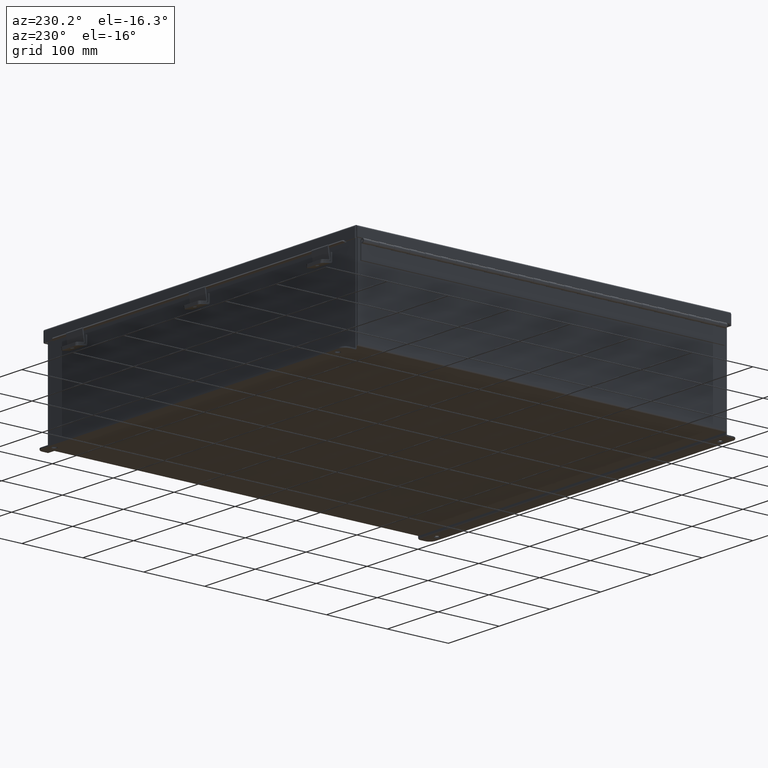
[diagram: clean part render]
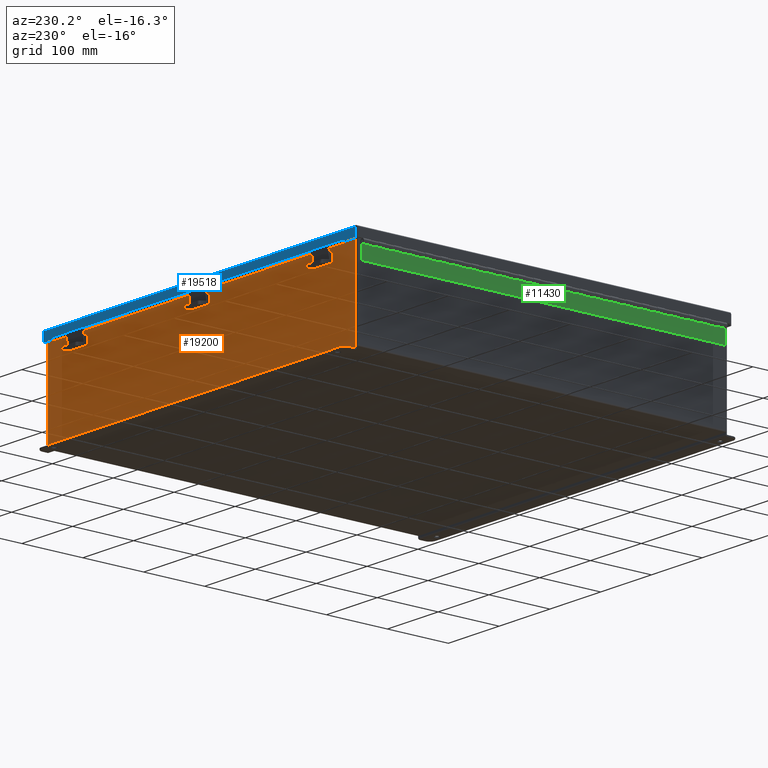
[diagram: same view with three faces highlighted in distinct colors, each labeled with its STEP entity id]
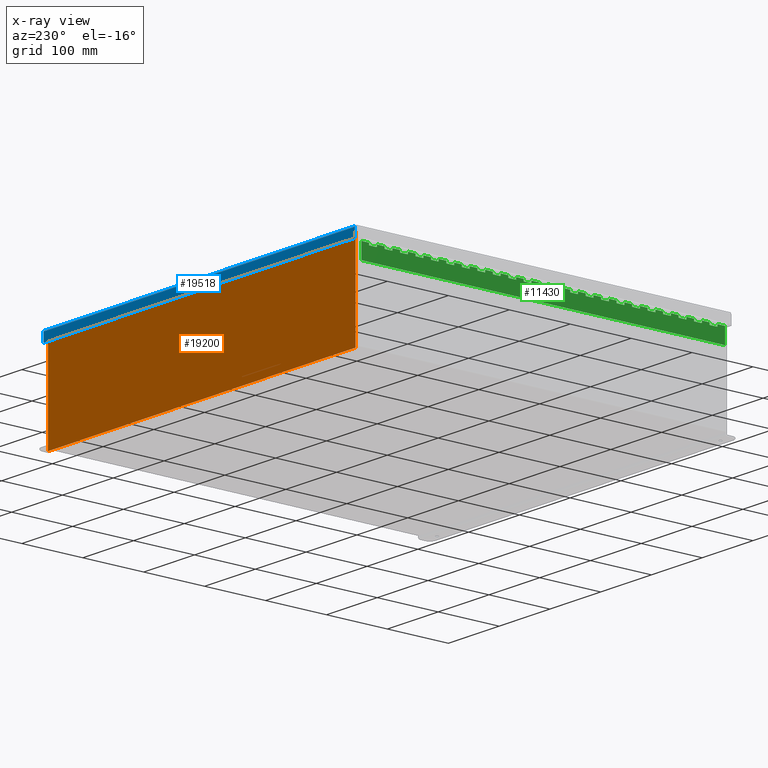
[diagram: x-ray of the same camera — body ghosted, the three highlighted faces saturated]
A machine part, auxiliary view with three faces highlighted in distinct colors.
The next image is the same camera in x-ray (body ghosted, the three faces saturated) — at least one of them is partly hidden behind the body in this view.
Their STEP definitions:

[orange] entity #19200 — the highlighted planar face has unit normal (0, -1, 0).
#136 = CARTESIAN_POINT ( 'NONE',  ( -11.58230000000000400, 0.0000000000000000000, 2.874949999999997000 ) ) ;
#377 = ORIENTED_EDGE ( 'NONE', *, *, #15343, .T. ) ;
#430 = VERTEX_POINT ( 'NONE', #1126 ) ;
#556 = DIRECTION ( 'NONE',  ( 0.0000000000000000000, 0.0000000000000000000, 1.000000000000000000 ) ) ;
#663 = CARTESIAN_POINT ( 'NONE',  ( 0.0000000000000000000, 0.0000000000000000000, 0.0000000000000000000 ) ) ;
#772 = AXIS2_PLACEMENT_3D ( 'NONE', #663, #23772, #12208 ) ;
#819 = CARTESIAN_POINT ( 'NONE',  ( 11.58230000000000400, 0.0000000000000000000, 0.0000000000000000000 ) ) ;
#1126 = CARTESIAN_POINT ( 'NONE',  ( 11.92530000000000000, 0.0000000000000000000, 2.925300000000000500 ) ) ;
#1234 = VERTEX_POINT ( 'NONE', #15492 ) ;
#1656 = LINE ( 'NONE', #16521, #11186 ) ;
#2429 = CARTESIAN_POINT ( 'NONE',  ( -11.92530000000000000, 0.0000000000000000000, 2.925300000000000500 ) ) ;
#2788 = VECTOR ( 'NONE', #21788, 39.37007874015748100 ) ;
#2834 = DIRECTION ( 'NONE',  ( 1.000000000000000000, -0.0000000000000000000, -0.0000000000000000000 ) ) ;
#3199 = EDGE_CURVE ( 'NONE', #6253, #18187, #22308, .T. ) ;
#3286 = LINE ( 'NONE', #19761, #7768 ) ;
#3351 = EDGE_CURVE ( 'NONE', #8774, #7048, #3286, .T. ) ;
#3495 = DIRECTION ( 'NONE',  ( -0.0000000000000000000, 1.000000000000000000, -0.0000000000000000000 ) ) ;
#4162 = ORIENTED_EDGE ( 'NONE', *, *, #11791, .F. ) ;
#4170 = ORIENTED_EDGE ( 'NONE', *, *, #3199, .F. ) ;
#4262 = CIRCLE ( 'NONE', #24525, 0.01867499999999949400 ) ;
#4464 = PLANE ( 'NONE',  #772 ) ;
#4716 = LINE ( 'NONE', #819, #20089 ) ;
#4767 = DIRECTION ( 'NONE',  ( -0.0000000000000000000, -0.0000000000000000000, 1.000000000000000000 ) ) ;
#4870 = VECTOR ( 'NONE', #11224, 39.37007874015748100 ) ;
#4977 = DIRECTION ( 'NONE',  ( -4.340572780399816900E-014, 0.0000000000000000000, -1.000000000000000000 ) ) ;
#5154 = ORIENTED_EDGE ( 'NONE', *, *, #19764, .T. ) ;
#5305 = EDGE_CURVE ( 'NONE', #19914, #16434, #14656, .T. ) ;
#5345 = DIRECTION ( 'NONE',  ( 0.0000000000000000000, 0.0000000000000000000, -1.000000000000000000 ) ) ;
#5645 = ORIENTED_EDGE ( 'NONE', *, *, #23618, .F. ) ;
#5656 = VECTOR ( 'NONE', #8188, 39.37007874015748100 ) ;
#5702 = CARTESIAN_POINT ( 'NONE',  ( -11.61965000000000200, 0.0000000000000000000, 2.925300000000000500 ) ) ;
#6253 = VERTEX_POINT ( 'NONE', #10481 ) ;
#6378 = EDGE_LOOP ( 'NONE', ( #19586, #4162, #13896, #22627, #20932, #4170, #16847, #10125, #377, #5645, #5154, #9671 ) ) ;
#6450 = DIRECTION ( 'NONE',  ( 0.0000000000000000000, 0.0000000000000000000, 1.000000000000000000 ) ) ;
#7048 = VERTEX_POINT ( 'NONE', #5702 ) ;
#7280 = CARTESIAN_POINT ( 'NONE',  ( 11.58230000000000400, 0.0000000000000000000, 2.912299999999998300 ) ) ;
#7565 = VERTEX_POINT ( 'NONE', #9169 ) ;
#7768 = VECTOR ( 'NONE', #556, 39.37007874015748100 ) ;
#7789 = VERTEX_POINT ( 'NONE', #11654 ) ;
#7915 = CARTESIAN_POINT ( 'NONE',  ( -11.61965000000000200, 0.0000000000000000000, 2.874949999999997000 ) ) ;
#8188 = DIRECTION ( 'NONE',  ( 1.000000000000000000, 0.0000000000000000000, 0.0000000000000000000 ) ) ;
#8199 = DIRECTION ( 'NONE',  ( 1.000000000000000000, 0.0000000000000000000, 0.0000000000000000000 ) ) ;
#8774 = VERTEX_POINT ( 'NONE', #7915 ) ;
#9169 = CARTESIAN_POINT ( 'NONE',  ( -11.92529999999999800, 0.0000000000000000000, -3.099299999999999900 ) ) ;
#9398 = LINE ( 'NONE', #20863, #4870 ) ;
#9605 = EDGE_CURVE ( 'NONE', #19914, #22182, #15540, .T. ) ;
#9671 = ORIENTED_EDGE ( 'NONE', *, *, #17205, .T. ) ;
#9801 = VECTOR ( 'NONE', #8199, 39.37007874015748100 ) ;
#10125 = ORIENTED_EDGE ( 'NONE', *, *, #15044, .T. ) ;
#10481 = CARTESIAN_POINT ( 'NONE',  ( 11.61965000000000200, 0.0000000000000000000, 2.874949999999997000 ) ) ;
#10961 = LINE ( 'NONE', #12434, #15512 ) ;
#11055 = CARTESIAN_POINT ( 'NONE',  ( -11.58230000000000400, 0.0000000000000000000, 0.0000000000000000000 ) ) ;
#11186 = VECTOR ( 'NONE', #4977, 39.37007874015748100 ) ;
#11224 = DIRECTION ( 'NONE',  ( 1.000000000000000000, 0.0000000000000000000, 0.0000000000000000000 ) ) ;
#11654 = CARTESIAN_POINT ( 'NONE',  ( 11.61965000000000200, 0.0000000000000000000, 2.925300000000000500 ) ) ;
#11791 = EDGE_CURVE ( 'NONE', #16434, #8774, #4262, .T. ) ;
#11920 = VECTOR ( 'NONE', #2834, 39.37007874015748100 ) ;
#12208 = DIRECTION ( 'NONE',  ( 0.0000000000000000000, -0.0000000000000000000, -1.000000000000000000 ) ) ;
#12434 = CARTESIAN_POINT ( 'NONE',  ( -11.92530000000000000, 0.0000000000000000000, 2.925300000000000500 ) ) ;
#13000 = LINE ( 'NONE', #15957, #2788 ) ;
#13382 = CARTESIAN_POINT ( 'NONE',  ( 11.92530000000000000, 0.0000000000000000000, -3.099299999999999900 ) ) ;
#13896 = ORIENTED_EDGE ( 'NONE', *, *, #5305, .F. ) ;
#14043 = FACE_OUTER_BOUND ( 'NONE', #6378, .T. ) ;
#14178 = EDGE_CURVE ( 'NONE', #7789, #6253, #1656, .T. ) ;
#14371 = CARTESIAN_POINT ( 'NONE',  ( -11.92530000000000000, 0.0000000000000000000, -3.099299999999999900 ) ) ;
#14656 = LINE ( 'NONE', #11055, #24917 ) ;
#15020 = CARTESIAN_POINT ( 'NONE',  ( -11.60097500000000200, 0.0000000000000000000, 2.874949999999997000 ) ) ;
#15044 = EDGE_CURVE ( 'NONE', #7789, #430, #9398, .T. ) ;
#15343 = EDGE_CURVE ( 'NONE', #430, #20000, #13000, .T. ) ;
#15492 = CARTESIAN_POINT ( 'NONE',  ( -11.92530000000000000, 0.0000000000000000000, 2.925300000000000500 ) ) ;
#15512 = VECTOR ( 'NONE', #4767, 39.37007874015748100 ) ;
#15540 = LINE ( 'NONE', #23558, #9801 ) ;
#15940 = LINE ( 'NONE', #2429, #5656 ) ;
#15957 = CARTESIAN_POINT ( 'NONE',  ( 11.92530000000000000, 0.0000000000000000000, 2.925300000000000500 ) ) ;
#15982 = DIRECTION ( 'NONE',  ( -0.0000000000000000000, 1.000000000000000000, -0.0000000000000000000 ) ) ;
#16434 = VERTEX_POINT ( 'NONE', #136 ) ;
#16521 = CARTESIAN_POINT ( 'NONE',  ( 11.61964999999987700, 0.0000000000000000000, -5.042991396304229400E-013 ) ) ;
#16847 = ORIENTED_EDGE ( 'NONE', *, *, #14178, .F. ) ;
#16954 = DIRECTION ( 'NONE',  ( 0.0000000000000000000, 0.0000000000000000000, -1.000000000000000000 ) ) ;
#17205 = EDGE_CURVE ( 'NONE', #1234, #7048, #15940, .T. ) ;
#17995 = EDGE_CURVE ( 'NONE', #18187, #22182, #4716, .T. ) ;
#18187 = VERTEX_POINT ( 'NONE', #20526 ) ;
#18312 = DIRECTION ( 'NONE',  ( 0.0000000000000000000, 0.0000000000000000000, -1.000000000000000000 ) ) ;
#19200 = ADVANCED_FACE ( 'NONE', ( #14043 ), #4464, .F. ) ;
#19586 = ORIENTED_EDGE ( 'NONE', *, *, #3351, .F. ) ;
#19761 = CARTESIAN_POINT ( 'NONE',  ( -11.61965000000000200, 0.0000000000000000000, 0.0000000000000000000 ) ) ;
#19764 = EDGE_CURVE ( 'NONE', #7565, #1234, #10961, .T. ) ;
#19914 = VERTEX_POINT ( 'NONE', #20711 ) ;
#20000 = VERTEX_POINT ( 'NONE', #13382 ) ;
#20089 = VECTOR ( 'NONE', #6450, 39.37007874015748100 ) ;
#20526 = CARTESIAN_POINT ( 'NONE',  ( 11.58230000000000400, 0.0000000000000000000, 2.874949999999997000 ) ) ;
#20711 = CARTESIAN_POINT ( 'NONE',  ( -11.58230000000000400, 4.370956789862821100E-015, 2.912299999999998300 ) ) ;
#20863 = CARTESIAN_POINT ( 'NONE',  ( -11.92530000000000000, 0.0000000000000000000, 2.925300000000000500 ) ) ;
#20932 = ORIENTED_EDGE ( 'NONE', *, *, #17995, .F. ) ;
#21508 = CARTESIAN_POINT ( 'NONE',  ( 11.60097500000000200, 0.0000000000000000000, 2.874949999999997000 ) ) ;
#21788 = DIRECTION ( 'NONE',  ( 0.0000000000000000000, 0.0000000000000000000, -1.000000000000000000 ) ) ;
#22182 = VERTEX_POINT ( 'NONE', #7280 ) ;
#22236 = LINE ( 'NONE', #14371, #11920 ) ;
#22308 = CIRCLE ( 'NONE', #23102, 0.01867499999999949400 ) ;
#22627 = ORIENTED_EDGE ( 'NONE', *, *, #9605, .T. ) ;
#23102 = AXIS2_PLACEMENT_3D ( 'NONE', #21508, #15982, #18312 ) ;
#23558 = CARTESIAN_POINT ( 'NONE',  ( -11.58230000000000400, 4.370956789862821100E-015, 2.912299999999998300 ) ) ;
#23618 = EDGE_CURVE ( 'NONE', #7565, #20000, #22236, .T. ) ;
#23772 = DIRECTION ( 'NONE',  ( 0.0000000000000000000, -1.000000000000000000, 0.0000000000000000000 ) ) ;
#24525 = AXIS2_PLACEMENT_3D ( 'NONE', #15020, #3495, #16954 ) ;
#24917 = VECTOR ( 'NONE', #5345, 39.37007874015748100 ) ;

[blue] entity #19518 — the highlighted planar face has unit normal (-0, -1, -0).
#63 = DIRECTION ( 'NONE',  ( -3.347543324056399800E-030, -1.000000000000000000, 3.569293475308532400E-015 ) ) ;
#69 = CARTESIAN_POINT ( 'NONE',  ( 11.32447893218817300, 12.15624999999999500, 0.5967115427318782100 ) ) ;
#120 = VERTEX_POINT ( 'NONE', #12143 ) ;
#163 = CARTESIAN_POINT ( 'NONE',  ( 11.32447893218817300, 12.15625000000000200, 0.6123000000000005100 ) ) ;
#961 = CARTESIAN_POINT ( 'NONE',  ( 12.15625000000003900, 12.15624999999999800, 0.01300000000000010700 ) ) ;
#1468 = EDGE_CURVE ( 'NONE', #18819, #22009, #19874, .T. ) ;
#2943 = VECTOR ( 'NONE', #12126, 39.37007874015748100 ) ;
#3811 = EDGE_CURVE ( 'NONE', #22009, #120, #9574, .T. ) ;
#4840 = CARTESIAN_POINT ( 'NONE',  ( -12.07447893218816400, 12.15625000000000000, 0.6122999999999994000 ) ) ;
#4943 = VECTOR ( 'NONE', #6434, 39.37007874015748100 ) ;
#4954 = ORIENTED_EDGE ( 'NONE', *, *, #23059, .F. ) ;
#4959 = DIRECTION ( 'NONE',  ( 1.000000000000000000, 3.215610014906585900E-030, 2.809098193999883300E-018 ) ) ;
#5404 = CARTESIAN_POINT ( 'NONE',  ( -12.07447893218816400, 12.15624999999999800, 0.01300000000000229300 ) ) ;
#5495 = ORIENTED_EDGE ( 'NONE', *, *, #23977, .F. ) ;
#6215 = EDGE_CURVE ( 'NONE', #18804, #15026, #19116, .T. ) ;
#6434 = DIRECTION ( 'NONE',  ( -0.0000000000000000000, 3.569293475308532400E-015, 1.000000000000000000 ) ) ;
#6462 = VECTOR ( 'NONE', #4959, 39.37007874015748100 ) ;
#7017 = CARTESIAN_POINT ( 'NONE',  ( -11.32447893218815200, 12.15625000000000000, 0.5967115427318782100 ) ) ;
#7130 = VECTOR ( 'NONE', #8048, 39.37007874015748100 ) ;
#7356 = CARTESIAN_POINT ( 'NONE',  ( 12.07447893218817300, 12.15625000000000000, 0.6123000000000005100 ) ) ;
#7450 = ORIENTED_EDGE ( 'NONE', *, *, #24875, .F. ) ;
#7855 = ORIENTED_EDGE ( 'NONE', *, *, #6215, .F. ) ;
#8031 = LINE ( 'NONE', #14011, #2943 ) ;
#8048 = DIRECTION ( 'NONE',  ( -9.813895308167668300E-013, 2.803970088047895600E-013, 1.000000000000000000 ) ) ;
#8707 = DIRECTION ( 'NONE',  ( 1.000000000000000000, 3.079756689383634900E-030, -8.989114220797575600E-017 ) ) ;
#8976 = VECTOR ( 'NONE', #10017, 39.37007874015748100 ) ;
#9574 = LINE ( 'NONE', #17441, #8976 ) ;
#9640 = VECTOR ( 'NONE', #13403, 39.37007874015748100 ) ;
#9781 = DIRECTION ( 'NONE',  ( 1.401985044024013700E-013, -4.205955132072028500E-013, -1.000000000000000000 ) ) ;
#10017 = DIRECTION ( 'NONE',  ( 1.000000000000000000, 3.215610014906585900E-030, 2.809098193999883300E-018 ) ) ;
#10478 = CARTESIAN_POINT ( 'NONE',  ( 11.32447893218817300, 12.15625000000000000, 0.6123000000000005100 ) ) ;
#11566 = LINE ( 'NONE', #961, #16114 ) ;
#12126 = DIRECTION ( 'NONE',  ( -1.000000000000000000, -3.191323508412551400E-030, -0.0000000000000000000 ) ) ;
#12143 = CARTESIAN_POINT ( 'NONE',  ( -11.32447893218816400, 12.15625000000000000, 0.6122999999999994000 ) ) ;
#13403 = DIRECTION ( 'NONE',  ( 0.0000000000000000000, 3.569293475308532400E-015, 1.000000000000000000 ) ) ;
#13490 = DIRECTION ( 'NONE',  ( 0.0000000000000000000, -3.569293475308532400E-015, -1.000000000000000000 ) ) ;
#13749 = VECTOR ( 'NONE', #9781, 39.37007874015748100 ) ;
#14011 = CARTESIAN_POINT ( 'NONE',  ( 11.32447893218816900, 12.15624999999999500, 0.5967115427318782100 ) ) ;
#15026 = VERTEX_POINT ( 'NONE', #7356 ) ;
#15353 = PLANE ( 'NONE',  #23964 ) ;
#15656 = ORIENTED_EDGE ( 'NONE', *, *, #1468, .T. ) ;
#15753 = CARTESIAN_POINT ( 'NONE',  ( -11.32447893218815200, 12.15624999999999500, 0.5967115427318782100 ) ) ;
#16114 = VECTOR ( 'NONE', #8707, 39.37007874015748100 ) ;
#16800 = VERTEX_POINT ( 'NONE', #7017 ) ;
#17280 = CARTESIAN_POINT ( 'NONE',  ( 0.0000000000000000000, 12.15624999999999800, -4.370956789862821100E-014 ) ) ;
#17347 = LINE ( 'NONE', #22342, #6462 ) ;
#17441 = CARTESIAN_POINT ( 'NONE',  ( 6.402768735150616900E-018, 12.15625000000000000, 0.6122999999999994000 ) ) ;
#17613 = FACE_OUTER_BOUND ( 'NONE', #18188, .T. ) ;
#17867 = EDGE_CURVE ( 'NONE', #16800, #120, #23168, .T. ) ;
#18052 = CARTESIAN_POINT ( 'NONE',  ( 12.07447893218817300, 12.15624999999999800, 0.0000000000000000000 ) ) ;
#18154 = ORIENTED_EDGE ( 'NONE', *, *, #24314, .T. ) ;
#18188 = EDGE_LOOP ( 'NONE', ( #5495, #18154, #7855, #7450, #15656, #20546, #21280, #4954 ) ) ;
#18804 = VERTEX_POINT ( 'NONE', #20760 ) ;
#18819 = VERTEX_POINT ( 'NONE', #5404 ) ;
#19116 = LINE ( 'NONE', #18052, #4943 ) ;
#19518 = ADVANCED_FACE ( 'NONE', ( #17613 ), #15353, .F. ) ;
#19874 = LINE ( 'NONE', #23191, #9640 ) ;
#20546 = ORIENTED_EDGE ( 'NONE', *, *, #3811, .T. ) ;
#20760 = CARTESIAN_POINT ( 'NONE',  ( 12.07447893218817300, 12.15624999999999800, 0.01300000000000010700 ) ) ;
#21280 = ORIENTED_EDGE ( 'NONE', *, *, #17867, .F. ) ;
#22009 = VERTEX_POINT ( 'NONE', #4840 ) ;
#22342 = CARTESIAN_POINT ( 'NONE',  ( 6.402768735150616900E-018, 12.15625000000000000, 0.6122999999999994000 ) ) ;
#23059 = EDGE_CURVE ( 'NONE', #23923, #16800, #8031, .T. ) ;
#23168 = LINE ( 'NONE', #15753, #7130 ) ;
#23191 = CARTESIAN_POINT ( 'NONE',  ( -12.07447893218816400, 12.15624999999999800, -4.370956789862821100E-014 ) ) ;
#23923 = VERTEX_POINT ( 'NONE', #69 ) ;
#23964 = AXIS2_PLACEMENT_3D ( 'NONE', #17280, #63, #13490 ) ;
#23977 = EDGE_CURVE ( 'NONE', #24833, #23923, #24617, .T. ) ;
#24314 = EDGE_CURVE ( 'NONE', #24833, #15026, #17347, .T. ) ;
#24617 = LINE ( 'NONE', #163, #13749 ) ;
#24833 = VERTEX_POINT ( 'NONE', #10478 ) ;
#24875 = EDGE_CURVE ( 'NONE', #18819, #18804, #11566, .T. ) ;

[green] entity #11430 — the highlighted planar face has unit normal (1, -0, 0).
#32 = AXIS2_PLACEMENT_3D ( 'NONE', #2419, #19709, #8176 ) ;
#98 = VECTOR ( 'NONE', #3203, 39.37007874015748100 ) ;
#169 = CARTESIAN_POINT ( 'NONE',  ( 0.2730000000000000200, -13.00000000000000000, 0.0000000000000000000 ) ) ;
#210 = LINE ( 'NONE', #10154, #9179 ) ;
#218 = ORIENTED_EDGE ( 'NONE', *, *, #19566, .F. ) ;
#263 = DIRECTION ( 'NONE',  ( -1.000000000000000000, 0.0000000000000000000, 0.0000000000000000000 ) ) ;
#308 = CARTESIAN_POINT ( 'NONE',  ( 0.1365000000000000100, 5.499999999999992900, -1.707404996040164500E-017 ) ) ;
#327 = DIRECTION ( 'NONE',  ( 0.0000000000000000000, 1.000000000000000000, 0.0000000000000000000 ) ) ;
#345 = CARTESIAN_POINT ( 'NONE',  ( 0.2730000000000000200, 3.499999999999992900, 0.0000000000000000000 ) ) ;
#499 = DIRECTION ( 'NONE',  ( 0.0000000000000000000, 1.000000000000000000, 0.0000000000000000000 ) ) ;
#512 = CARTESIAN_POINT ( 'NONE',  ( 0.2730000000000000200, -2.000000000000000000, 0.0000000000000000000 ) ) ;
#529 = CARTESIAN_POINT ( 'NONE',  ( 0.1365000000000000100, 5.999999999999994700, -1.707404996040164500E-017 ) ) ;
#540 = EDGE_CURVE ( 'NONE', #15709, #7718, #8482, .T. ) ;
#598 = CARTESIAN_POINT ( 'NONE',  ( 0.2730000000000000200, 22.99999999999999300, 0.0000000000000000000 ) ) ;
#618 = EDGE_CURVE ( 'NONE', #19229, #2800, #16937, .T. ) ;
#629 = EDGE_CURVE ( 'NONE', #9892, #6254, #11169, .T. ) ;
#640 = DIRECTION ( 'NONE',  ( -1.000000000000000000, 0.0000000000000000000, 0.0000000000000000000 ) ) ;
#655 = CARTESIAN_POINT ( 'NONE',  ( 0.0000000000000000000, 18.99999999999999300, 0.0000000000000000000 ) ) ;
#660 = CARTESIAN_POINT ( 'NONE',  ( 0.2730000000000000200, -16.00000000000000000, 0.0000000000000000000 ) ) ;
#666 = EDGE_CURVE ( 'NONE', #14313, #19229, #9974, .T. ) ;
#706 = CARTESIAN_POINT ( 'NONE',  ( 0.0000000000000000000, 15.99999999999999500, 0.0000000000000000000 ) ) ;
#727 = ORIENTED_EDGE ( 'NONE', *, *, #972, .T. ) ;
#755 = VERTEX_POINT ( 'NONE', #21858 ) ;
#758 = CARTESIAN_POINT ( 'NONE',  ( 0.0000000000000000000, 20.49999999999999300, 0.0000000000000000000 ) ) ;
#828 = EDGE_CURVE ( 'NONE', #9166, #24805, #22997, .T. ) ;
#842 = CARTESIAN_POINT ( 'NONE',  ( 0.0000000000000000000, 6.499999999999992000, 0.0000000000000000000 ) ) ;
#876 = CARTESIAN_POINT ( 'NONE',  ( 0.0000000000000000000, 10.99999999999999500, 0.0000000000000000000 ) ) ;
#895 = CARTESIAN_POINT ( 'NONE',  ( 0.0000000000000000000, 12.99999999999999300, 0.0000000000000000000 ) ) ;
#904 = CARTESIAN_POINT ( 'NONE',  ( 0.1365000000000000100, 0.0000000000000000000, -1.707404996040164500E-017 ) ) ;
#913 = ORIENTED_EDGE ( 'NONE', *, *, #3759, .F. ) ;
#972 = EDGE_CURVE ( 'NONE', #19100, #12028, #18713, .T. ) ;
#1046 = CARTESIAN_POINT ( 'NONE',  ( 0.0000000000000000000, 0.0000000000000000000, 0.0000000000000000000 ) ) ;
#1058 = ORIENTED_EDGE ( 'NONE', *, *, #19624, .F. ) ;
#1075 = DIRECTION ( 'NONE',  ( 0.0000000000000000000, 1.000000000000000000, 0.0000000000000000000 ) ) ;
#1108 = CARTESIAN_POINT ( 'NONE',  ( 0.1365000000000000100, 0.0000000000000000000, -1.707404996040164500E-017 ) ) ;
#1119 = CARTESIAN_POINT ( 'NONE',  ( 0.2730000000000000200, 12.99999999999999300, 0.0000000000000000000 ) ) ;
#1138 = VECTOR ( 'NONE', #13664, 39.37007874015748100 ) ;
#1158 = VECTOR ( 'NONE', #21607, 39.37007874015748100 ) ;
#1196 = DIRECTION ( 'NONE',  ( 0.0000000000000000000, 1.000000000000000000, 0.0000000000000000000 ) ) ;
#1226 = VECTOR ( 'NONE', #1404, 39.37007874015748100 ) ;
#1267 = EDGE_CURVE ( 'NONE', #16825, #17977, #4228, .T. ) ;
#1276 = LINE ( 'NONE', #876, #21709 ) ;
#1325 = ORIENTED_EDGE ( 'NONE', *, *, #20747, .T. ) ;
#1358 = VERTEX_POINT ( 'NONE', #10248 ) ;
#1385 = VERTEX_POINT ( 'NONE', #16926 ) ;
#1397 = LINE ( 'NONE', #706, #10932 ) ;
#1404 = DIRECTION ( 'NONE',  ( 0.0000000000000000000, 1.000000000000000000, 0.0000000000000000000 ) ) ;
#1405 = VECTOR ( 'NONE', #21211, 39.37007874015748100 ) ;
#1427 = VECTOR ( 'NONE', #8629, 39.37007874015748100 ) ;
#1469 = CARTESIAN_POINT ( 'NONE',  ( 0.1365000000000000100, 22.99999999999999300, -1.707404996040164500E-017 ) ) ;
#1488 = DIRECTION ( 'NONE',  ( -1.000000000000000000, 0.0000000000000000000, 0.0000000000000000000 ) ) ;
#1500 = CARTESIAN_POINT ( 'NONE',  ( 0.2730000000000000200, 14.99999999999999500, 0.0000000000000000000 ) ) ;
#1505 = ORIENTED_EDGE ( 'NONE', *, *, #8931, .F. ) ;
#1527 = CARTESIAN_POINT ( 'NONE',  ( 0.2730000000000000200, -11.99999999999999800, 0.0000000000000000000 ) ) ;
#1642 = EDGE_CURVE ( 'NONE', #8722, #2421, #6601, .T. ) ;
#1647 = VERTEX_POINT ( 'NONE', #18911 ) ;
#1652 = VECTOR ( 'NONE', #10418, 39.37007874015748100 ) ;
#1663 = VECTOR ( 'NONE', #16653, 39.37007874015748100 ) ;
#1694 = VECTOR ( 'NONE', #21138, 39.37007874015748100 ) ;
#1733 = DIRECTION ( 'NONE',  ( 0.0000000000000000000, 1.000000000000000000, 0.0000000000000000000 ) ) ;
#1788 = DIRECTION ( 'NONE',  ( 0.0000000000000000000, 1.000000000000000000, 0.0000000000000000000 ) ) ;
#1791 = CARTESIAN_POINT ( 'NONE',  ( 0.2730000000000000200, -2.999999999999999600, 0.0000000000000000000 ) ) ;
#1809 = CARTESIAN_POINT ( 'NONE',  ( 0.2730000000000000200, -22.00000000000000000, 0.0000000000000000000 ) ) ;
#1817 = EDGE_CURVE ( 'NONE', #2259, #17203, #14819, .T. ) ;
#1832 = ORIENTED_EDGE ( 'NONE', *, *, #9909, .F. ) ;
#1865 = VECTOR ( 'NONE', #19899, 39.37007874015748100 ) ;
#2089 = VECTOR ( 'NONE', #24813, 39.37007874015748100 ) ;
#2169 = EDGE_CURVE ( 'NONE', #14560, #755, #18387, .T. ) ;
#2192 = DIRECTION ( 'NONE',  ( 0.0000000000000000000, 1.000000000000000000, 0.0000000000000000000 ) ) ;
#2209 = VERTEX_POINT ( 'NONE', #17776 ) ;
#2228 = ORIENTED_EDGE ( 'NONE', *, *, #23339, .T. ) ;
#2259 = VERTEX_POINT ( 'NONE', #4133 ) ;
#2271 = VECTOR ( 'NONE', #17780, 39.37007874015748100 ) ;
#2319 = VERTEX_POINT ( 'NONE', #17154 ) ;
#2361 = DIRECTION ( 'NONE',  ( -1.000000000000000000, 0.0000000000000000000, 0.0000000000000000000 ) ) ;
#2377 = EDGE_CURVE ( 'NONE', #8986, #13803, #9046, .T. ) ;
#2397 = VECTOR ( 'NONE', #11417, 39.37007874015748100 ) ;
#2415 = ORIENTED_EDGE ( 'NONE', *, *, #8179, .F. ) ;
#2419 = CARTESIAN_POINT ( 'NONE',  ( 1.136499999999999800, 23.50000000000000000, 0.0000000000000000000 ) ) ;
#2421 = VERTEX_POINT ( 'NONE', #8098 ) ;
#2516 = DIRECTION ( 'NONE',  ( 0.0000000000000000000, 1.000000000000000000, 0.0000000000000000000 ) ) ;
#2694 = EDGE_CURVE ( 'NONE', #10328, #16481, #7501, .T. ) ;
#2707 = ORIENTED_EDGE ( 'NONE', *, *, #618, .F. ) ;
#2719 = EDGE_CURVE ( 'NONE', #21565, #15709, #1276, .T. ) ;
#2729 = EDGE_CURVE ( 'NONE', #10589, #15672, #15973, .T. ) ;
#2740 = VECTOR ( 'NONE', #16026, 39.37007874015748100 ) ;
#2769 = LINE ( 'NONE', #1046, #23261 ) ;
#2777 = ORIENTED_EDGE ( 'NONE', *, *, #8138, .T. ) ;
#2800 = VERTEX_POINT ( 'NONE', #11144 ) ;
#2807 = VECTOR ( 'NONE', #14331, 39.37007874015748100 ) ;
#2819 = VERTEX_POINT ( 'NONE', #13535 ) ;
#2835 = VERTEX_POINT ( 'NONE', #6328 ) ;
#2849 = LINE ( 'NONE', #4231, #17584 ) ;
#2872 = ORIENTED_EDGE ( 'NONE', *, *, #22032, .F. ) ;
#2910 = DIRECTION ( 'NONE',  ( 0.0000000000000000000, 1.000000000000000000, 0.0000000000000000000 ) ) ;
#2970 = CARTESIAN_POINT ( 'NONE',  ( 0.2730000000000000200, -1.000000000000000000, 0.0000000000000000000 ) ) ;
#2995 = CARTESIAN_POINT ( 'NONE',  ( 0.0000000000000000000, 14.99999999999999500, 0.0000000000000000000 ) ) ;
#3010 = EDGE_CURVE ( 'NONE', #2421, #23204, #16866, .T. ) ;
#3012 = ORIENTED_EDGE ( 'NONE', *, *, #18981, .F. ) ;
#3130 = EDGE_CURVE ( 'NONE', #22500, #16860, #13847, .T. ) ;
#3183 = VERTEX_POINT ( 'NONE', #3409 ) ;
#3203 = DIRECTION ( 'NONE',  ( 0.0000000000000000000, 1.000000000000000000, 0.0000000000000000000 ) ) ;
#3232 = DIRECTION ( 'NONE',  ( 0.0000000000000000000, 1.000000000000000000, 0.0000000000000000000 ) ) ;
#3300 = VERTEX_POINT ( 'NONE', #18568 ) ;
#3302 = DIRECTION ( 'NONE',  ( -1.000000000000000000, 0.0000000000000000000, 0.0000000000000000000 ) ) ;
#3409 = CARTESIAN_POINT ( 'NONE',  ( 0.2730000000000000200, 15.49999999999999300, 0.0000000000000000000 ) ) ;
#3425 = DIRECTION ( 'NONE',  ( -1.000000000000000000, 0.0000000000000000000, 0.0000000000000000000 ) ) ;
#3447 = ORIENTED_EDGE ( 'NONE', *, *, #666, .F. ) ;
#3488 = VERTEX_POINT ( 'NONE', #22189 ) ;
#3492 = VECTOR ( 'NONE', #19133, 39.37007874015748100 ) ;
#3590 = ORIENTED_EDGE ( 'NONE', *, *, #18063, .T. ) ;
#3616 = VECTOR ( 'NONE', #327, 39.37007874015748100 ) ;
#3635 = EDGE_CURVE ( 'NONE', #17203, #7166, #7451, .T. ) ;
#3668 = CARTESIAN_POINT ( 'NONE',  ( 0.0000000000000000000, 22.49999999999999300, 0.0000000000000000000 ) ) ;
#3673 = DIRECTION ( 'NONE',  ( 0.0000000000000000000, 1.000000000000000000, 0.0000000000000000000 ) ) ;
#3697 = EDGE_CURVE ( 'NONE', #18683, #21944, #16524, .T. ) ;
#3702 = VECTOR ( 'NONE', #1733, 39.37007874015748100 ) ;
#3759 = EDGE_CURVE ( 'NONE', #1647, #17547, #10766, .T. ) ;
#3778 = VECTOR ( 'NONE', #22908, 39.37007874015748100 ) ;
#3825 = VECTOR ( 'NONE', #20547, 39.37007874015748100 ) ;
#3826 = ORIENTED_EDGE ( 'NONE', *, *, #11047, .T. ) ;
#3920 = CARTESIAN_POINT ( 'NONE',  ( 0.2730000000000000200, 19.99999999999999300, 0.0000000000000000000 ) ) ;
#3925 = LINE ( 'NONE', #24776, #13565 ) ;
#3978 = VECTOR ( 'NONE', #17707, 39.37007874015748100 ) ;
#4047 = EDGE_CURVE ( 'NONE', #19100, #16596, #10465, .T. ) ;
#4057 = ORIENTED_EDGE ( 'NONE', *, *, #3130, .F. ) ;
#4097 = CARTESIAN_POINT ( 'NONE',  ( 0.0000000000000000000, 17.99999999999999300, 0.0000000000000000000 ) ) ;
#4102 = VECTOR ( 'NONE', #7745, 39.37007874015748100 ) ;
#4133 = CARTESIAN_POINT ( 'NONE',  ( 0.2730000000000000200, 16.49999999999999300, 0.0000000000000000000 ) ) ;
#4183 = VECTOR ( 'NONE', #16564, 39.37007874015748100 ) ;
#4217 = LINE ( 'NONE', #10872, #24736 ) ;
#4228 = LINE ( 'NONE', #13486, #14498 ) ;
#4231 = CARTESIAN_POINT ( 'NONE',  ( 0.0000000000000000000, 19.49999999999999300, 0.0000000000000000000 ) ) ;
#4246 = CARTESIAN_POINT ( 'NONE',  ( 0.1365000000000000100, 0.0000000000000000000, -1.707404996040164500E-017 ) ) ;
#4265 = CARTESIAN_POINT ( 'NONE',  ( 0.0000000000000000000, 15.49999999999999300, 0.0000000000000000000 ) ) ;
#4357 = LINE ( 'NONE', #8052, #14012 ) ;
#4586 = VERTEX_POINT ( 'NONE', #5182 ) ;
#4603 = VERTEX_POINT ( 'NONE', #20106 ) ;
#4636 = CARTESIAN_POINT ( 'NONE',  ( 0.2730000000000000200, -8.000000000000000000, 0.0000000000000000000 ) ) ;
#4639 = VECTOR ( 'NONE', #14063, 39.37007874015748100 ) ;
#4680 = ORIENTED_EDGE ( 'NONE', *, *, #6551, .T. ) ;
#4681 = CARTESIAN_POINT ( 'NONE',  ( 0.0000000000000000000, 9.499999999999992900, 0.0000000000000000000 ) ) ;
#4685 = DIRECTION ( 'NONE',  ( 0.0000000000000000000, 1.000000000000000000, 0.0000000000000000000 ) ) ;
#4694 = DIRECTION ( 'NONE',  ( 0.0000000000000000000, 1.000000000000000000, 0.0000000000000000000 ) ) ;
#4738 = CARTESIAN_POINT ( 'NONE',  ( 1.136500000000000100, 0.0000000000000000000, 0.0000000000000000000 ) ) ;
#4782 = CARTESIAN_POINT ( 'NONE',  ( 0.2730000000000000200, -21.00000000000000000, 0.0000000000000000000 ) ) ;
#4811 = ORIENTED_EDGE ( 'NONE', *, *, #12468, .F. ) ;
#4845 = VERTEX_POINT ( 'NONE', #13756 ) ;
#4847 = VECTOR ( 'NONE', #4694, 39.37007874015748100 ) ;
#4914 = ORIENTED_EDGE ( 'NONE', *, *, #7821, .F. ) ;
#4988 = VECTOR ( 'NONE', #7521, 39.37007874015748100 ) ;
#5039 = VECTOR ( 'NONE', #9691, 39.37007874015748100 ) ;
#5053 = VECTOR ( 'NONE', #18323, 39.37007874015748100 ) ;
#5126 = CARTESIAN_POINT ( 'NONE',  ( 0.1365000000000000100, 21.49999999999999300, -1.707404996040164500E-017 ) ) ;
#5182 = CARTESIAN_POINT ( 'NONE',  ( 0.1365000000000000100, 0.4999999999999930100, -1.707404996040164500E-017 ) ) ;
#5186 = VECTOR ( 'NONE', #16236, 39.37007874015748100 ) ;
#5210 = CARTESIAN_POINT ( 'NONE',  ( 0.1365000000000000100, 0.0000000000000000000, -1.707404996040164500E-017 ) ) ;
#5240 = EDGE_CURVE ( 'NONE', #16596, #10905, #21603, .T. ) ;
#5338 = VECTOR ( 'NONE', #6163, 39.37007874015748100 ) ;
#5342 = VECTOR ( 'NONE', #15830, 39.37007874015748100 ) ;
#5514 = CARTESIAN_POINT ( 'NONE',  ( 0.1365000000000000100, 12.99999999999999300, -1.707404996040164500E-017 ) ) ;
#5531 = LINE ( 'NONE', #4782, #20311 ) ;
#5541 = VERTEX_POINT ( 'NONE', #598 ) ;
#5848 = VERTEX_POINT ( 'NONE', #5514 ) ;
#5865 = DIRECTION ( 'NONE',  ( -1.000000000000000000, 0.0000000000000000000, 0.0000000000000000000 ) ) ;
#5930 = LINE ( 'NONE', #23375, #15603 ) ;
#5949 = DIRECTION ( 'NONE',  ( 0.0000000000000000000, 1.000000000000000000, 0.0000000000000000000 ) ) ;
#5986 = LINE ( 'NONE', #23183, #15663 ) ;
#5987 = EDGE_CURVE ( 'NONE', #14560, #11856, #14926, .T. ) ;
#5998 = EDGE_CURVE ( 'NONE', #9846, #1358, #210, .T. ) ;
#6022 = ORIENTED_EDGE ( 'NONE', *, *, #4047, .F. ) ;
#6047 = VECTOR ( 'NONE', #6216, 39.37007874015748100 ) ;
#6163 = DIRECTION ( 'NONE',  ( -1.000000000000000000, 0.0000000000000000000, 0.0000000000000000000 ) ) ;
#6216 = DIRECTION ( 'NONE',  ( -1.000000000000000000, 0.0000000000000000000, 0.0000000000000000000 ) ) ;
#6228 = PLANE ( 'NONE',  #32 ) ;
#6231 = LINE ( 'NONE', #169, #5039 ) ;
#6254 = VERTEX_POINT ( 'NONE', #12331 ) ;
#6258 = LINE ( 'NONE', #13856, #10777 ) ;
#6264 = LINE ( 'NONE', #904, #15946 ) ;
#6279 = ORIENTED_EDGE ( 'NONE', *, *, #18963, .F. ) ;
#6301 = LINE ( 'NONE', #15607, #15988 ) ;
#6328 = CARTESIAN_POINT ( 'NONE',  ( 0.2730000000000000200, 4.499999999999992000, 0.0000000000000000000 ) ) ;
#6359 = CARTESIAN_POINT ( 'NONE',  ( 0.0000000000000000000, 13.99999999999999300, 0.0000000000000000000 ) ) ;
#6365 = EDGE_CURVE ( 'NONE', #21823, #21622, #12159, .T. ) ;
#6500 = CARTESIAN_POINT ( 'NONE',  ( 0.0000000000000000000, 11.49999999999999300, 0.0000000000000000000 ) ) ;
#6535 = VERTEX_POINT ( 'NONE', #11882 ) ;
#6546 = CARTESIAN_POINT ( 'NONE',  ( 0.1365000000000000100, 0.0000000000000000000, -1.707404996040164500E-017 ) ) ;
#6551 = EDGE_CURVE ( 'NONE', #19567, #21583, #2849, .T. ) ;
#6561 = DIRECTION ( 'NONE',  ( 0.0000000000000000000, 1.000000000000000000, 0.0000000000000000000 ) ) ;
#6564 = ORIENTED_EDGE ( 'NONE', *, *, #2169, .F. ) ;
#6577 = EDGE_CURVE ( 'NONE', #9277, #24010, #12441, .T. ) ;
#6586 = LINE ( 'NONE', #17517, #7188 ) ;
#6601 = LINE ( 'NONE', #7181, #17475 ) ;
#6671 = LINE ( 'NONE', #23916, #1652 ) ;
#6682 = DIRECTION ( 'NONE',  ( -5.812442539711198700E-018, 1.000000000000000000, 0.0000000000000000000 ) ) ;
#6705 = CARTESIAN_POINT ( 'NONE',  ( 0.0000000000000000000, 7.499999999999992000, 0.0000000000000000000 ) ) ;
#6730 = VERTEX_POINT ( 'NONE', #12466 ) ;
#6766 = VECTOR ( 'NONE', #23447, 39.37007874015748100 ) ;
#6789 = VERTEX_POINT ( 'NONE', #1119 ) ;
#6791 = CARTESIAN_POINT ( 'NONE',  ( 0.1365000000000000100, 0.0000000000000000000, -1.707404996040164500E-017 ) ) ;
#6805 = DIRECTION ( 'NONE',  ( 0.0000000000000000000, 1.000000000000000000, 0.0000000000000000000 ) ) ;
#6808 = EDGE_CURVE ( 'NONE', #14891, #10328, #24243, .T. ) ;
#6815 = CARTESIAN_POINT ( 'NONE',  ( 0.0000000000000000000, 4.999999999999993800, 0.0000000000000000000 ) ) ;
#6829 = DIRECTION ( 'NONE',  ( -1.000000000000000000, 0.0000000000000000000, 0.0000000000000000000 ) ) ;
#6861 = VERTEX_POINT ( 'NONE', #20658 ) ;
#6883 = CARTESIAN_POINT ( 'NONE',  ( 0.2730000000000000200, 10.99999999999999500, 0.0000000000000000000 ) ) ;
#6932 = VECTOR ( 'NONE', #3425, 39.37007874015748100 ) ;
#6953 = ORIENTED_EDGE ( 'NONE', *, *, #1267, .F. ) ;
#7015 = CARTESIAN_POINT ( 'NONE',  ( 0.1365000000000000100, 0.0000000000000000000, -1.707404996040164500E-017 ) ) ;
#7066 = CARTESIAN_POINT ( 'NONE',  ( 0.2730000000000000200, 3.999999999999994700, 0.0000000000000000000 ) ) ;
#7101 = CARTESIAN_POINT ( 'NONE',  ( 0.2730000000000000200, 11.49999999999999300, 0.0000000000000000000 ) ) ;
#7103 = EDGE_CURVE ( 'NONE', #9188, #18950, #6586, .T. ) ;
#7166 = VERTEX_POINT ( 'NONE', #17674 ) ;
#7181 = CARTESIAN_POINT ( 'NONE',  ( 0.0000000000000000000, 1.999999999999994000, 0.0000000000000000000 ) ) ;
#7188 = VECTOR ( 'NONE', #5949, 39.37007874015748100 ) ;
#7198 = CARTESIAN_POINT ( 'NONE',  ( 0.2730000000000000200, 20.49999999999999300, 0.0000000000000000000 ) ) ;
#7232 = VECTOR ( 'NONE', #499, 39.37007874015748100 ) ;
#7333 = EDGE_CURVE ( 'NONE', #2819, #4586, #6264, .T. ) ;
#7411 = CARTESIAN_POINT ( 'NONE',  ( 0.1365000000000000100, 0.0000000000000000000, -1.707404996040164500E-017 ) ) ;
#7449 = CARTESIAN_POINT ( 'NONE',  ( 0.2730000000000000200, 2.999999999999993300, 0.0000000000000000000 ) ) ;
#7451 = LINE ( 'NONE', #19289, #2397 ) ;
#7501 = LINE ( 'NONE', #20150, #1865 ) ;
#7521 = DIRECTION ( 'NONE',  ( 0.0000000000000000000, 1.000000000000000000, 0.0000000000000000000 ) ) ;
#7680 = LINE ( 'NONE', #7866, #12198 ) ;
#7695 = CARTESIAN_POINT ( 'NONE',  ( 0.2730000000000000200, 9.499999999999992900, 0.0000000000000000000 ) ) ;
#7713 = DIRECTION ( 'NONE',  ( -1.000000000000000000, -0.0000000000000000000, -0.0000000000000000000 ) ) ;
#7718 = VERTEX_POINT ( 'NONE', #15173 ) ;
#7745 = DIRECTION ( 'NONE',  ( 0.0000000000000000000, 1.000000000000000000, 0.0000000000000000000 ) ) ;
#7812 = CARTESIAN_POINT ( 'NONE',  ( 0.2730000000000000200, 19.49999999999999300, 0.0000000000000000000 ) ) ;
#7821 = EDGE_CURVE ( 'NONE', #21944, #9188, #22909, .T. ) ;
#7825 = CARTESIAN_POINT ( 'NONE',  ( 0.2730000000000000200, 1.999999999999994000, 0.0000000000000000000 ) ) ;
#7861 = ORIENTED_EDGE ( 'NONE', *, *, #8628, .F. ) ;
#7866 = CARTESIAN_POINT ( 'NONE',  ( 0.0000000000000000000, 8.999999999999994700, 0.0000000000000000000 ) ) ;
#7964 = ORIENTED_EDGE ( 'NONE', *, *, #23206, .F. ) ;
#8028 = VECTOR ( 'NONE', #20091, 39.37007874015748100 ) ;
#8052 = CARTESIAN_POINT ( 'NONE',  ( 0.1365000000000000100, 0.0000000000000000000, -1.707404996040164500E-017 ) ) ;
#8084 = DIRECTION ( 'NONE',  ( -1.000000000000000000, 0.0000000000000000000, 0.0000000000000000000 ) ) ;
#8085 = VERTEX_POINT ( 'NONE', #7695 ) ;
#8098 = CARTESIAN_POINT ( 'NONE',  ( 0.1365000000000000100, 1.999999999999994000, -1.707404996040164500E-017 ) ) ;
#8138 = EDGE_CURVE ( 'NONE', #2835, #6730, #11656, .T. ) ;
#8176 = DIRECTION ( 'NONE',  ( -1.000000000000000000, 0.0000000000000000000, -0.0000000000000000000 ) ) ;
#8179 = EDGE_CURVE ( 'NONE', #5541, #9846, #15606, .T. ) ;
#8220 = CARTESIAN_POINT ( 'NONE',  ( 0.2730000000000000200, 17.99999999999999300, 0.0000000000000000000 ) ) ;
#8256 = LINE ( 'NONE', #10161, #23088 ) ;
#8259 = EDGE_CURVE ( 'NONE', #6861, #8522, #18914, .T. ) ;
#8276 = CARTESIAN_POINT ( 'NONE',  ( 0.2730000000000000200, 21.49999999999999300, 0.0000000000000000000 ) ) ;
#8417 = CARTESIAN_POINT ( 'NONE',  ( 0.2730000000000000200, 18.99999999999999300, 0.0000000000000000000 ) ) ;
#8457 = DIRECTION ( 'NONE',  ( -1.000000000000000000, 0.0000000000000000000, 0.0000000000000000000 ) ) ;
#8482 = LINE ( 'NONE', #21418, #18117 ) ;
#8483 = CARTESIAN_POINT ( 'NONE',  ( 0.2730000000000000200, 22.49999999999999300, 0.0000000000000000000 ) ) ;
#8513 = DIRECTION ( 'NONE',  ( -1.000000000000000000, 0.0000000000000000000, 0.0000000000000000000 ) ) ;
#8522 = VERTEX_POINT ( 'NONE', #22478 ) ;
#8628 = EDGE_CURVE ( 'NONE', #13646, #24485, #17975, .T. ) ;
#8629 = DIRECTION ( 'NONE',  ( -1.000000000000000000, 0.0000000000000000000, 0.0000000000000000000 ) ) ;
#8644 = VECTOR ( 'NONE', #2516, 39.37007874015748100 ) ;
#8722 = VERTEX_POINT ( 'NONE', #7825 ) ;
#8729 = ORIENTED_EDGE ( 'NONE', *, *, #5240, .F. ) ;
#8742 = DIRECTION ( 'NONE',  ( 0.0000000000000000000, 1.000000000000000000, 0.0000000000000000000 ) ) ;
#8762 = DIRECTION ( 'NONE',  ( -1.000000000000000000, 0.0000000000000000000, 0.0000000000000000000 ) ) ;
#8931 = EDGE_CURVE ( 'NONE', #11740, #15167, #17091, .T. ) ;
#8986 = VERTEX_POINT ( 'NONE', #12868 ) ;
#9005 = EDGE_CURVE ( 'NONE', #2800, #21583, #14065, .T. ) ;
#9028 = ORIENTED_EDGE ( 'NONE', *, *, #24847, .T. ) ;
#9046 = LINE ( 'NONE', #4246, #14179 ) ;
#9091 = LINE ( 'NONE', #19633, #3978 ) ;
#9166 = VERTEX_POINT ( 'NONE', #8483 ) ;
#9179 = VECTOR ( 'NONE', #22592, 39.37007874015748100 ) ;
#9188 = VERTEX_POINT ( 'NONE', #14330 ) ;
#9190 = LINE ( 'NONE', #11347, #3492 ) ;
#9277 = VERTEX_POINT ( 'NONE', #7198 ) ;
#9303 = CARTESIAN_POINT ( 'NONE',  ( 0.2730000000000000200, -19.00000000000000000, 0.0000000000000000000 ) ) ;
#9326 = DIRECTION ( 'NONE',  ( 0.0000000000000000000, 1.000000000000000000, 0.0000000000000000000 ) ) ;
#9370 = CARTESIAN_POINT ( 'NONE',  ( 0.1365000000000000100, 8.999999999999994700, -1.707404996040164500E-017 ) ) ;
#9383 = ORIENTED_EDGE ( 'NONE', *, *, #10711, .F. ) ;
#9382 = VECTOR ( 'NONE', #14860, 39.37007874015748100 ) ;
#9399 = VERTEX_POINT ( 'NONE', #13194 ) ;
#9411 = CARTESIAN_POINT ( 'NONE',  ( 0.1365000000000000100, 0.0000000000000000000, -1.707404996040164500E-017 ) ) ;
#9427 = EDGE_CURVE ( 'NONE', #21660, #2319, #10098, .T. ) ;
#9527 = EDGE_CURVE ( 'NONE', #8522, #18904, #7680, .T. ) ;
#9547 = VECTOR ( 'NONE', #6805, 39.37007874015748100 ) ;
#9614 = CARTESIAN_POINT ( 'NONE',  ( 0.1365000000000000100, 1.499999999999992200, -1.707404996040164500E-017 ) ) ;
#9629 = CARTESIAN_POINT ( 'NONE',  ( 0.1365000000000000100, 16.49999999999999300, -1.707404996040164500E-017 ) ) ;
#9673 = CARTESIAN_POINT ( 'NONE',  ( 1.136500000000000100, 23.50000000000000000, 0.0000000000000000000 ) ) ;
#9691 = DIRECTION ( 'NONE',  ( 0.0000000000000000000, 1.000000000000000000, 0.0000000000000000000 ) ) ;
#9712 = EDGE_CURVE ( 'NONE', #18904, #24824, #13118, .T. ) ;
#9778 = EDGE_CURVE ( 'NONE', #15189, #11073, #12491, .T. ) ;
#9814 = LINE ( 'NONE', #15533, #18866 ) ;
#9846 = VERTEX_POINT ( 'NONE', #1469 ) ;
#9848 = EDGE_CURVE ( 'NONE', #10905, #18678, #15245, .T. ) ;
#9892 = VERTEX_POINT ( 'NONE', #20846 ) ;
#9909 = EDGE_CURVE ( 'NONE', #5848, #3488, #19136, .T. ) ;
#9912 = EDGE_CURVE ( 'NONE', #12832, #24805, #14630, .T. ) ;
#9935 = ORIENTED_EDGE ( 'NONE', *, *, #9005, .F. ) ;
#9936 = CARTESIAN_POINT ( 'NONE',  ( 0.0000000000000000000, 20.99999999999999600, 0.0000000000000000000 ) ) ;
#9974 = LINE ( 'NONE', #10925, #4847 ) ;
#10043 = VERTEX_POINT ( 'NONE', #21352 ) ;
#10072 = VECTOR ( 'NONE', #24564, 39.37007874015748100 ) ;
#10090 = LINE ( 'NONE', #14010, #24907 ) ;
#10098 = LINE ( 'NONE', #13273, #4988 ) ;
#10120 = ORIENTED_EDGE ( 'NONE', *, *, #19125, .F. ) ;
#10154 = CARTESIAN_POINT ( 'NONE',  ( 0.1365000000000000100, 0.0000000000000000000, -1.707404996040164500E-017 ) ) ;
#10161 = CARTESIAN_POINT ( 'NONE',  ( 0.0000000000000000000, 18.49999999999999300, 0.0000000000000000000 ) ) ;
#10184 = VECTOR ( 'NONE', #17791, 39.37007874015748100 ) ;
#10187 = CARTESIAN_POINT ( 'NONE',  ( 0.2730000000000000200, 9.999999999999994700, 0.0000000000000000000 ) ) ;
#10214 = CARTESIAN_POINT ( 'NONE',  ( 0.2730000000000000200, -14.00000000000000000, 0.0000000000000000000 ) ) ;
#10215 = DIRECTION ( 'NONE',  ( -1.000000000000000000, 0.0000000000000000000, 0.0000000000000000000 ) ) ;
#10248 = CARTESIAN_POINT ( 'NONE',  ( 0.1365000000000000100, 23.50000000000000000, -1.707404996040164500E-017 ) ) ;
#10260 = LINE ( 'NONE', #6500, #19900 ) ;
#10289 = EDGE_CURVE ( 'NONE', #17514, #8722, #5531, .T. ) ;
#10328 = VERTEX_POINT ( 'NONE', #20296 ) ;
#10335 = DIRECTION ( 'NONE',  ( -1.000000000000000000, 0.0000000000000000000, 0.0000000000000000000 ) ) ;
#10370 = ORIENTED_EDGE ( 'NONE', *, *, #24675, .T. ) ;
#10411 = ORIENTED_EDGE ( 'NONE', *, *, #15304, .T. ) ;
#10412 = VECTOR ( 'NONE', #3673, 39.37007874015748100 ) ;
#10418 = DIRECTION ( 'NONE',  ( -1.000000000000000000, 0.0000000000000000000, 0.0000000000000000000 ) ) ;
#10420 = CARTESIAN_POINT ( 'NONE',  ( 0.2730000000000000200, -17.00000000000000000, 0.0000000000000000000 ) ) ;
#10429 = VERTEX_POINT ( 'NONE', #10580 ) ;
#10442 = ORIENTED_EDGE ( 'NONE', *, *, #20333, .T. ) ;
#10465 = LINE ( 'NONE', #22588, #5342 ) ;
#10580 = CARTESIAN_POINT ( 'NONE',  ( 0.2730000000000000200, 13.49999999999999100, 0.0000000000000000000 ) ) ;
#10582 = LINE ( 'NONE', #18613, #15145 ) ;
#10589 = VERTEX_POINT ( 'NONE', #1500 ) ;
#10598 = ORIENTED_EDGE ( 'NONE', *, *, #2729, .F. ) ;
#10706 = VECTOR ( 'NONE', #12476, 39.37007874015748100 ) ;
#10711 = EDGE_CURVE ( 'NONE', #2835, #14891, #22146, .T. ) ;
#10750 = ORIENTED_EDGE ( 'NONE', *, *, #21593, .F. ) ;
#10756 = CARTESIAN_POINT ( 'NONE',  ( 0.2730000000000000200, 12.49999999999999100, 0.0000000000000000000 ) ) ;
#10766 = LINE ( 'NONE', #6546, #5053 ) ;
#10777 = VECTOR ( 'NONE', #2361, 39.37007874015748100 ) ;
#10803 = VECTOR ( 'NONE', #13710, 39.37007874015748100 ) ;
#10842 = VERTEX_POINT ( 'NONE', #529 ) ;
#10872 = CARTESIAN_POINT ( 'NONE',  ( 0.2730000000000000200, -10.00000000000000000, 0.0000000000000000000 ) ) ;
#10905 = VERTEX_POINT ( 'NONE', #19810 ) ;
#10925 = CARTESIAN_POINT ( 'NONE',  ( 0.2730000000000000200, -4.000000000000000000, 0.0000000000000000000 ) ) ;
#10927 = CARTESIAN_POINT ( 'NONE',  ( 0.1365000000000000100, 19.49999999999999300, -1.707404996040164500E-017 ) ) ;
#10932 = VECTOR ( 'NONE', #14123, 39.37007874015748100 ) ;
#10988 = DIRECTION ( 'NONE',  ( -1.000000000000000000, 0.0000000000000000000, 0.0000000000000000000 ) ) ;
#11017 = CARTESIAN_POINT ( 'NONE',  ( 0.2730000000000000200, 18.49999999999999300, 0.0000000000000000000 ) ) ;
#11047 = EDGE_CURVE ( 'NONE', #19058, #21622, #19362, .T. ) ;
#11050 = ORIENTED_EDGE ( 'NONE', *, *, #19171, .F. ) ;
#11073 = VERTEX_POINT ( 'NONE', #12649 ) ;
#11111 = LINE ( 'NONE', #19346, #20163 ) ;
#11144 = CARTESIAN_POINT ( 'NONE',  ( 0.1365000000000000100, 18.99999999999999300, -1.707404996040164500E-017 ) ) ;
#11159 = ORIENTED_EDGE ( 'NONE', *, *, #9778, .F. ) ;
#11169 = LINE ( 'NONE', #23212, #20856 ) ;
#11179 = ORIENTED_EDGE ( 'NONE', *, *, #21179, .T. ) ;
#11205 = CARTESIAN_POINT ( 'NONE',  ( 0.1365000000000000100, 0.0000000000000000000, -1.707404996040164500E-017 ) ) ;
#11257 = CARTESIAN_POINT ( 'NONE',  ( 0.1365000000000000100, 3.499999999999992900, -1.707404996040164500E-017 ) ) ;
#11285 = ORIENTED_EDGE ( 'NONE', *, *, #9527, .F. ) ;
#11321 = LINE ( 'NONE', #16371, #15873 ) ;
#11323 = VECTOR ( 'NONE', #8742, 39.37007874015748100 ) ;
#11347 = CARTESIAN_POINT ( 'NONE',  ( 0.0000000000000000000, 5.999999999999994700, 0.0000000000000000000 ) ) ;
#11417 = DIRECTION ( 'NONE',  ( -1.000000000000000000, 0.0000000000000000000, 0.0000000000000000000 ) ) ;
#11430 = ADVANCED_FACE ( 'NONE', ( #11492 ), #6228, .F. ) ;
#11438 = VERTEX_POINT ( 'NONE', #15951 ) ;
#11464 = ORIENTED_EDGE ( 'NONE', *, *, #15897, .F. ) ;
#11476 = ORIENTED_EDGE ( 'NONE', *, *, #1817, .F. ) ;
#11492 = FACE_OUTER_BOUND ( 'NONE', #19619, .T. ) ;
#11512 = CARTESIAN_POINT ( 'NONE',  ( 0.1365000000000000100, 3.999999999999994700, -1.707404996040164500E-017 ) ) ;
#11549 = EDGE_CURVE ( 'NONE', #9399, #10589, #14234, .T. ) ;
#11552 = CARTESIAN_POINT ( 'NONE',  ( 0.2730000000000000200, -15.00000000000000000, 0.0000000000000000000 ) ) ;
#11587 = CARTESIAN_POINT ( 'NONE',  ( 0.1365000000000000100, 20.99999999999999600, -1.707404996040164500E-017 ) ) ;
#11600 = ORIENTED_EDGE ( 'NONE', *, *, #19685, .T. ) ;
#11656 = LINE ( 'NONE', #17635, #21353 ) ;
#11660 = ORIENTED_EDGE ( 'NONE', *, *, #20830, .T. ) ;
#11672 = DIRECTION ( 'NONE',  ( 0.0000000000000000000, 1.000000000000000000, 0.0000000000000000000 ) ) ;
#11677 = CARTESIAN_POINT ( 'NONE',  ( 0.0000000000000000000, 2.999999999999993300, 0.0000000000000000000 ) ) ;
#11685 = VERTEX_POINT ( 'NONE', #7066 ) ;
#11686 = EDGE_CURVE ( 'NONE', #3183, #11438, #10582, .T. ) ;
#11740 = VERTEX_POINT ( 'NONE', #22632 ) ;
#11745 = EDGE_CURVE ( 'NONE', #4603, #21565, #19612, .T. ) ;
#11856 = VERTEX_POINT ( 'NONE', #20459 ) ;
#11882 = CARTESIAN_POINT ( 'NONE',  ( 0.2730000000000000200, 5.499999999999992900, 0.0000000000000000000 ) ) ;
#11965 = CARTESIAN_POINT ( 'NONE',  ( 0.2730000000000000200, 16.99999999999999300, 0.0000000000000000000 ) ) ;
#11988 = ORIENTED_EDGE ( 'NONE', *, *, #2377, .F. ) ;
#12028 = VERTEX_POINT ( 'NONE', #24625 ) ;
#12029 = DIRECTION ( 'NONE',  ( 0.0000000000000000000, 1.000000000000000000, 0.0000000000000000000 ) ) ;
#12110 = ORIENTED_EDGE ( 'NONE', *, *, #2719, .F. ) ;
#12159 = LINE ( 'NONE', #13359, #1405 ) ;
#12168 = VERTEX_POINT ( 'NONE', #11512 ) ;
#12198 = VECTOR ( 'NONE', #13704, 39.37007874015748100 ) ;
#12199 = ORIENTED_EDGE ( 'NONE', *, *, #6808, .F. ) ;
#12331 = CARTESIAN_POINT ( 'NONE',  ( 0.1365000000000000100, 6.999999999999993800, -1.707404996040164500E-017 ) ) ;
#12397 = VECTOR ( 'NONE', #10335, 39.37007874015748100 ) ;
#12441 = LINE ( 'NONE', #512, #2271 ) ;
#12466 = CARTESIAN_POINT ( 'NONE',  ( 0.1365000000000000100, 4.499999999999992000, -1.707404996040164500E-017 ) ) ;
#12468 = EDGE_CURVE ( 'NONE', #19239, #1647, #18130, .T. ) ;
#12472 = EDGE_CURVE ( 'NONE', #6789, #5848, #22096, .T. ) ;
#12476 = DIRECTION ( 'NONE',  ( -1.000000000000000000, 0.0000000000000000000, 0.0000000000000000000 ) ) ;
#12483 = CARTESIAN_POINT ( 'NONE',  ( 0.1365000000000000100, 0.0000000000000000000, -1.707404996040164500E-017 ) ) ;
#12487 = DIRECTION ( 'NONE',  ( -1.000000000000000000, 0.0000000000000000000, 0.0000000000000000000 ) ) ;
#12491 = LINE ( 'NONE', #24238, #17046 ) ;
#12499 = EDGE_CURVE ( 'NONE', #6535, #16481, #6671, .T. ) ;
#12509 = CARTESIAN_POINT ( 'NONE',  ( 0.2730000000000000200, 0.9999999999999947800, 0.0000000000000000000 ) ) ;
#12558 = ORIENTED_EDGE ( 'NONE', *, *, #17716, .F. ) ;
#12569 = DIRECTION ( 'NONE',  ( -1.000000000000000000, 0.0000000000000000000, 0.0000000000000000000 ) ) ;
#12624 = LINE ( 'NONE', #24780, #13250 ) ;
#12649 = CARTESIAN_POINT ( 'NONE',  ( 0.1365000000000000100, 19.99999999999999300, -1.707404996040164500E-017 ) ) ;
#12832 = VERTEX_POINT ( 'NONE', #13534 ) ;
#12868 = CARTESIAN_POINT ( 'NONE',  ( 0.1365000000000000100, 9.999999999999994700, -1.707404996040164500E-017 ) ) ;
#12871 = DIRECTION ( 'NONE',  ( -1.000000000000000000, 0.0000000000000000000, 0.0000000000000000000 ) ) ;
#12874 = CARTESIAN_POINT ( 'NONE',  ( 0.0000000000000000000, 13.49999999999999100, 0.0000000000000000000 ) ) ;
#12887 = CARTESIAN_POINT ( 'NONE',  ( 0.1365000000000000100, 14.99999999999999500, -1.707404996040164500E-017 ) ) ;
#12923 = CARTESIAN_POINT ( 'NONE',  ( 0.0000000000000000000, 21.49999999999999300, 0.0000000000000000000 ) ) ;
#12971 = ORIENTED_EDGE ( 'NONE', *, *, #11549, .F. ) ;
#13062 = VECTOR ( 'NONE', #6682, 39.37007874015748100 ) ;
#13077 = CARTESIAN_POINT ( 'NONE',  ( 0.1365000000000000100, 10.99999999999999500, -1.707404996040164500E-017 ) ) ;
#13118 = LINE ( 'NONE', #12483, #13724 ) ;
#13152 = LINE ( 'NONE', #21966, #17087 ) ;
#13194 = CARTESIAN_POINT ( 'NONE',  ( 0.2730000000000000200, 14.49999999999999300, 0.0000000000000000000 ) ) ;
#13214 = DIRECTION ( 'NONE',  ( -1.000000000000000000, 0.0000000000000000000, 0.0000000000000000000 ) ) ;
#13215 = DIRECTION ( 'NONE',  ( 0.0000000000000000000, 1.000000000000000000, 0.0000000000000000000 ) ) ;
#13241 = CARTESIAN_POINT ( 'NONE',  ( 0.2730000000000000200, -20.00000000000000000, 0.0000000000000000000 ) ) ;
#13250 = VECTOR ( 'NONE', #13215, 39.37007874015748100 ) ;
#13273 = CARTESIAN_POINT ( 'NONE',  ( 0.1365000000000000100, 0.0000000000000000000, -1.707404996040164500E-017 ) ) ;
#13277 = VECTOR ( 'NONE', #1196, 39.37007874015748100 ) ;
#13359 = CARTESIAN_POINT ( 'NONE',  ( 0.1365000000000000100, 0.0000000000000000000, -1.707404996040164500E-017 ) ) ;
#13413 = VECTOR ( 'NONE', #1788, 39.37007874015748100 ) ;
#13436 = EDGE_CURVE ( 'NONE', #755, #1385, #19886, .T. ) ;
#13485 = ORIENTED_EDGE ( 'NONE', *, *, #14781, .F. ) ;
#13486 = CARTESIAN_POINT ( 'NONE',  ( 0.2730000000000000200, -11.00000000000000000, 0.0000000000000000000 ) ) ;
#13534 = CARTESIAN_POINT ( 'NONE',  ( 0.1365000000000000100, 21.99999999999999600, -1.707404996040164500E-017 ) ) ;
#13535 = CARTESIAN_POINT ( 'NONE',  ( 0.1364999999999999000, 0.0000000000000000000, 0.0000000000000000000 ) ) ;
#13565 = VECTOR ( 'NONE', #13214, 39.37007874015748100 ) ;
#13621 = CARTESIAN_POINT ( 'NONE',  ( 0.2730000000000000200, 5.999999999999994700, 0.0000000000000000000 ) ) ;
#13632 = VECTOR ( 'NONE', #6561, 39.37007874015748100 ) ;
#13638 = EDGE_CURVE ( 'NONE', #21542, #6789, #4217, .T. ) ;
#13646 = VERTEX_POINT ( 'NONE', #14778 ) ;
#13664 = DIRECTION ( 'NONE',  ( -1.000000000000000000, 0.0000000000000000000, 0.0000000000000000000 ) ) ;
#13704 = DIRECTION ( 'NONE',  ( -1.000000000000000000, 0.0000000000000000000, 0.0000000000000000000 ) ) ;
#13710 = DIRECTION ( 'NONE',  ( -1.000000000000000000, 0.0000000000000000000, 0.0000000000000000000 ) ) ;
#13724 = VECTOR ( 'NONE', #2910, 39.37007874015748100 ) ;
#13744 = CARTESIAN_POINT ( 'NONE',  ( 0.2730000000000000200, 20.99999999999999600, 0.0000000000000000000 ) ) ;
#13756 = CARTESIAN_POINT ( 'NONE',  ( 0.1365000000000000100, 20.49999999999999300, -1.707404996040164500E-017 ) ) ;
#13803 = VERTEX_POINT ( 'NONE', #22902 ) ;
#13845 = ORIENTED_EDGE ( 'NONE', *, *, #14935, .F. ) ;
#13847 = LINE ( 'NONE', #2970, #3616 ) ;
#13856 = CARTESIAN_POINT ( 'NONE',  ( 0.0000000000000000000, 1.499999999999992200, 0.0000000000000000000 ) ) ;
#13859 = CARTESIAN_POINT ( 'NONE',  ( 0.0000000000000000000, 22.99999999999999300, 0.0000000000000000000 ) ) ;
#13942 = DIRECTION ( 'NONE',  ( -1.000000000000000000, 0.0000000000000000000, 0.0000000000000000000 ) ) ;
#13945 = CARTESIAN_POINT ( 'NONE',  ( 0.0000000000000000000, 9.999999999999994700, 0.0000000000000000000 ) ) ;
#14010 = CARTESIAN_POINT ( 'NONE',  ( 0.2730000000000000200, 0.0000000000000000000, 0.0000000000000000000 ) ) ;
#14012 = VECTOR ( 'NONE', #15839, 39.37007874015748100 ) ;
#14015 = LINE ( 'NONE', #4265, #14627 ) ;
#14063 = DIRECTION ( 'NONE',  ( -1.000000000000000000, 0.0000000000000000000, 0.0000000000000000000 ) ) ;
#14065 = LINE ( 'NONE', #5210, #3825 ) ;
#14123 = DIRECTION ( 'NONE',  ( -1.000000000000000000, 0.0000000000000000000, 0.0000000000000000000 ) ) ;
#14179 = VECTOR ( 'NONE', #19544, 39.37007874015748100 ) ;
#14223 = VECTOR ( 'NONE', #13942, 39.37007874015748100 ) ;
#14234 = LINE ( 'NONE', #4636, #13632 ) ;
#14313 = VERTEX_POINT ( 'NONE', #11017 ) ;
#14330 = CARTESIAN_POINT ( 'NONE',  ( 0.1365000000000000100, 0.9999999999999947800, -1.707404996040164500E-017 ) ) ;
#14331 = DIRECTION ( 'NONE',  ( -1.000000000000000000, 0.0000000000000000000, 0.0000000000000000000 ) ) ;
#14334 = ORIENTED_EDGE ( 'NONE', *, *, #10289, .F. ) ;
#14392 = ORIENTED_EDGE ( 'NONE', *, *, #23654, .T. ) ;
#14460 = DIRECTION ( 'NONE',  ( 1.000000000000000000, 0.0000000000000000000, 0.0000000000000000000 ) ) ;
#14498 = VECTOR ( 'NONE', #11672, 39.37007874015748100 ) ;
#14510 = CARTESIAN_POINT ( 'NONE',  ( 0.1365000000000000100, 2.499999999999991600, -1.707404996040164500E-017 ) ) ;
#14534 = VERTEX_POINT ( 'NONE', #9673 ) ;
#14560 = VERTEX_POINT ( 'NONE', #15507 ) ;
#14568 = CARTESIAN_POINT ( 'NONE',  ( 0.2730000000000000200, 4.999999999999993800, 0.0000000000000000000 ) ) ;
#14583 = ORIENTED_EDGE ( 'NONE', *, *, #14868, .F. ) ;
#14627 = VECTOR ( 'NONE', #15818, 39.37007874015748100 ) ;
#14630 = LINE ( 'NONE', #11205, #13413 ) ;
#14692 = LINE ( 'NONE', #1108, #9547 ) ;
#14729 = ORIENTED_EDGE ( 'NONE', *, *, #12499, .T. ) ;
#14778 = CARTESIAN_POINT ( 'NONE',  ( 0.2730000000000000200, 2.499999999999991600, 0.0000000000000000000 ) ) ;
#14781 = EDGE_CURVE ( 'NONE', #6535, #18422, #14862, .T. ) ;
#14819 = LINE ( 'NONE', #20628, #98 ) ;
#14860 = DIRECTION ( 'NONE',  ( 0.0000000000000000000, 1.000000000000000000, 0.0000000000000000000 ) ) ;
#14862 = LINE ( 'NONE', #10420, #5186 ) ;
#14868 = EDGE_CURVE ( 'NONE', #1385, #10043, #19949, .T. ) ;
#14877 = CARTESIAN_POINT ( 'NONE',  ( 0.1365000000000000100, 0.0000000000000000000, -1.707404996040164500E-017 ) ) ;
#14891 = VERTEX_POINT ( 'NONE', #14568 ) ;
#14926 = LINE ( 'NONE', #6705, #4639 ) ;
#14935 = EDGE_CURVE ( 'NONE', #10842, #16381, #16957, .T. ) ;
#14976 = ORIENTED_EDGE ( 'NONE', *, *, #18598, .F. ) ;
#15082 = EDGE_CURVE ( 'NONE', #19058, #11685, #19052, .T. ) ;
#15145 = VECTOR ( 'NONE', #3232, 39.37007874015748100 ) ;
#15167 = VERTEX_POINT ( 'NONE', #9629 ) ;
#15173 = CARTESIAN_POINT ( 'NONE',  ( 0.1365000000000000100, 11.49999999999999300, -1.707404996040164500E-017 ) ) ;
#15189 = VERTEX_POINT ( 'NONE', #3920 ) ;
#15214 = ORIENTED_EDGE ( 'NONE', *, *, #828, .T. ) ;
#15245 = LINE ( 'NONE', #14877, #10072 ) ;
#15304 = EDGE_CURVE ( 'NONE', #6861, #10043, #9091, .T. ) ;
#15312 = EDGE_CURVE ( 'NONE', #4603, #13803, #19924, .T. ) ;
#15507 = CARTESIAN_POINT ( 'NONE',  ( 0.2730000000000000200, 7.499999999999992000, 0.0000000000000000000 ) ) ;
#15533 = CARTESIAN_POINT ( 'NONE',  ( 0.1365000000000000100, 0.0000000000000000000, -1.707404996040164500E-017 ) ) ;
#15558 = LINE ( 'NONE', #1791, #10412 ) ;
#15603 = VECTOR ( 'NONE', #22982, 39.37007874015748100 ) ;
#15606 = LINE ( 'NONE', #13859, #5338 ) ;
#15607 = CARTESIAN_POINT ( 'NONE',  ( 0.0000000000000000000, 0.4999999999999930100, 0.0000000000000000000 ) ) ;
#15639 = ORIENTED_EDGE ( 'NONE', *, *, #540, .F. ) ;
#15663 = VECTOR ( 'NONE', #7713, 39.37007874015748100 ) ;
#15672 = VERTEX_POINT ( 'NONE', #12887 ) ;
#15709 = VERTEX_POINT ( 'NONE', #13077 ) ;
#15818 = DIRECTION ( 'NONE',  ( -1.000000000000000000, 0.0000000000000000000, 0.0000000000000000000 ) ) ;
#15830 = DIRECTION ( 'NONE',  ( 0.0000000000000000000, 1.000000000000000000, 0.0000000000000000000 ) ) ;
#15839 = DIRECTION ( 'NONE',  ( 0.0000000000000000000, 1.000000000000000000, 0.0000000000000000000 ) ) ;
#15873 = VECTOR ( 'NONE', #20225, 39.37007874015748100 ) ;
#15897 = EDGE_CURVE ( 'NONE', #21700, #23332, #22674, .T. ) ;
#15946 = VECTOR ( 'NONE', #4685, 39.37007874015748100 ) ;
#15951 = CARTESIAN_POINT ( 'NONE',  ( 0.2730000000000000200, 15.99999999999999500, 0.0000000000000000000 ) ) ;
#15973 = LINE ( 'NONE', #2995, #10803 ) ;
#15986 = EDGE_CURVE ( 'NONE', #3300, #16381, #20185, .T. ) ;
#15988 = VECTOR ( 'NONE', #263, 39.37007874015748100 ) ;
#15999 = CARTESIAN_POINT ( 'NONE',  ( 0.2730000000000000200, 11.99999999999999500, 0.0000000000000000000 ) ) ;
#16004 = ORIENTED_EDGE ( 'NONE', *, *, #22944, .T. ) ;
#16026 = DIRECTION ( 'NONE',  ( 0.0000000000000000000, 1.000000000000000000, 0.0000000000000000000 ) ) ;
#16236 = DIRECTION ( 'NONE',  ( 0.0000000000000000000, 1.000000000000000000, 0.0000000000000000000 ) ) ;
#16267 = VECTOR ( 'NONE', #8513, 39.37007874015748100 ) ;
#16309 = DIRECTION ( 'NONE',  ( -1.000000000000000000, 0.0000000000000000000, 0.0000000000000000000 ) ) ;
#16315 = EDGE_CURVE ( 'NONE', #11685, #12168, #3925, .T. ) ;
#16352 = DIRECTION ( 'NONE',  ( 0.0000000000000000000, 1.000000000000000000, 0.0000000000000000000 ) ) ;
#16371 = CARTESIAN_POINT ( 'NONE',  ( 0.0000000000000000000, 16.49999999999999300, 0.0000000000000000000 ) ) ;
#16381 = VERTEX_POINT ( 'NONE', #21071 ) ;
#16416 = CARTESIAN_POINT ( 'NONE',  ( 0.1365000000000000100, 0.0000000000000000000, -1.707404996040164500E-017 ) ) ;
#16421 = LINE ( 'NONE', #11677, #1138 ) ;
#16429 = EDGE_CURVE ( 'NONE', #14534, #1358, #5986, .T. ) ;
#16444 = EDGE_CURVE ( 'NONE', #17977, #21660, #11111, .T. ) ;
#16445 = LINE ( 'NONE', #9936, #1158 ) ;
#16481 = VERTEX_POINT ( 'NONE', #308 ) ;
#16524 = LINE ( 'NONE', #1809, #1226 ) ;
#16564 = DIRECTION ( 'NONE',  ( 0.0000000000000000000, 1.000000000000000000, 0.0000000000000000000 ) ) ;
#16596 = VERTEX_POINT ( 'NONE', #8220 ) ;
#16653 = DIRECTION ( 'NONE',  ( 0.0000000000000000000, 1.000000000000000000, 0.0000000000000000000 ) ) ;
#16656 = ORIENTED_EDGE ( 'NONE', *, *, #13638, .F. ) ;
#16788 = CARTESIAN_POINT ( 'NONE',  ( 0.2730000000000000200, 1.499999999999992200, 0.0000000000000000000 ) ) ;
#16825 = VERTEX_POINT ( 'NONE', #7101 ) ;
#16840 = EDGE_CURVE ( 'NONE', #22500, #23332, #22624, .T. ) ;
#16860 = VERTEX_POINT ( 'NONE', #24587 ) ;
#16866 = LINE ( 'NONE', #9411, #21401 ) ;
#16919 = ORIENTED_EDGE ( 'NONE', *, *, #16315, .F. ) ;
#16926 = CARTESIAN_POINT ( 'NONE',  ( 0.1365000000000000100, 7.999999999999993800, -1.707404996040164500E-017 ) ) ;
#16931 = ORIENTED_EDGE ( 'NONE', *, *, #16840, .T. ) ;
#16937 = LINE ( 'NONE', #655, #6047 ) ;
#16957 = LINE ( 'NONE', #7015, #1663 ) ;
#17009 = ORIENTED_EDGE ( 'NONE', *, *, #9848, .F. ) ;
#17046 = VECTOR ( 'NONE', #6829, 39.37007874015748100 ) ;
#17087 = VECTOR ( 'NONE', #8457, 39.37007874015748100 ) ;
#17091 = LINE ( 'NONE', #6791, #11323 ) ;
#17154 = CARTESIAN_POINT ( 'NONE',  ( 0.1365000000000000100, 12.49999999999999100, -1.707404996040164500E-017 ) ) ;
#17178 = EDGE_CURVE ( 'NONE', #17514, #18950, #6258, .T. ) ;
#17203 = VERTEX_POINT ( 'NONE', #11965 ) ;
#17204 = EDGE_CURVE ( 'NONE', #23052, #8986, #21078, .T. ) ;
#17250 = CARTESIAN_POINT ( 'NONE',  ( 0.2730000000000000200, -18.00000000000000000, 0.0000000000000000000 ) ) ;
#17346 = ORIENTED_EDGE ( 'NONE', *, *, #6577, .F. ) ;
#17395 = VECTOR ( 'NONE', #3302, 39.37007874015748100 ) ;
#17449 = VECTOR ( 'NONE', #1488, 39.37007874015748100 ) ;
#17451 = DIRECTION ( 'NONE',  ( 0.0000000000000000000, 1.000000000000000000, 0.0000000000000000000 ) ) ;
#17475 = VECTOR ( 'NONE', #16309, 39.37007874015748100 ) ;
#17514 = VERTEX_POINT ( 'NONE', #16788 ) ;
#17517 = CARTESIAN_POINT ( 'NONE',  ( 0.1365000000000000100, 0.0000000000000000000, -1.707404996040164500E-017 ) ) ;
#17547 = VERTEX_POINT ( 'NONE', #20745 ) ;
#17556 = ORIENTED_EDGE ( 'NONE', *, *, #3635, .F. ) ;
#17584 = VECTOR ( 'NONE', #8084, 39.37007874015748100 ) ;
#17635 = CARTESIAN_POINT ( 'NONE',  ( 0.0000000000000000000, 4.499999999999992000, 0.0000000000000000000 ) ) ;
#17639 = LINE ( 'NONE', #21526, #6766 ) ;
#17661 = ORIENTED_EDGE ( 'NONE', *, *, #11686, .F. ) ;
#17674 = CARTESIAN_POINT ( 'NONE',  ( 0.1365000000000000100, 16.99999999999999300, -1.707404996040164500E-017 ) ) ;
#17707 = DIRECTION ( 'NONE',  ( -1.000000000000000000, 0.0000000000000000000, 0.0000000000000000000 ) ) ;
#17716 = EDGE_CURVE ( 'NONE', #8085, #23052, #6231, .T. ) ;
#17776 = CARTESIAN_POINT ( 'NONE',  ( 1.136500000000000100, 0.0000000000000000000, 0.0000000000000000000 ) ) ;
#17780 = DIRECTION ( 'NONE',  ( 0.0000000000000000000, 1.000000000000000000, 0.0000000000000000000 ) ) ;
#17791 = DIRECTION ( 'NONE',  ( -1.000000000000000000, 0.0000000000000000000, 0.0000000000000000000 ) ) ;
#17824 = CARTESIAN_POINT ( 'NONE',  ( 0.1365000000000000100, 2.999999999999993300, -1.707404996040164500E-017 ) ) ;
#17975 = LINE ( 'NONE', #13241, #2089 ) ;
#17977 = VERTEX_POINT ( 'NONE', #15999 ) ;
#18063 = EDGE_CURVE ( 'NONE', #8085, #24824, #18283, .T. ) ;
#18097 = ORIENTED_EDGE ( 'NONE', *, *, #11745, .F. ) ;
#18117 = VECTOR ( 'NONE', #2192, 39.37007874015748100 ) ;
#18130 = LINE ( 'NONE', #6359, #12397 ) ;
#18140 = VECTOR ( 'NONE', #1075, 39.37007874015748100 ) ;
#18146 = CARTESIAN_POINT ( 'NONE',  ( 0.1365000000000000100, 9.499999999999992900, -1.707404996040164500E-017 ) ) ;
#18283 = LINE ( 'NONE', #4681, #8028 ) ;
#18323 = DIRECTION ( 'NONE',  ( 0.0000000000000000000, 1.000000000000000000, 0.0000000000000000000 ) ) ;
#18387 = LINE ( 'NONE', #11552, #13277 ) ;
#18422 = VERTEX_POINT ( 'NONE', #13621 ) ;
#18520 = LINE ( 'NONE', #20159, #1427 ) ;
#18568 = CARTESIAN_POINT ( 'NONE',  ( 0.2730000000000000200, 6.499999999999992000, 0.0000000000000000000 ) ) ;
#18583 = ORIENTED_EDGE ( 'NONE', *, *, #9427, .F. ) ;
#18598 = EDGE_CURVE ( 'NONE', #16860, #12832, #13152, .T. ) ;
#18613 = CARTESIAN_POINT ( 'NONE',  ( 0.2730000000000000200, -7.000000000000000000, 0.0000000000000000000 ) ) ;
#18678 = VERTEX_POINT ( 'NONE', #22306 ) ;
#18683 = VERTEX_POINT ( 'NONE', #24241 ) ;
#18688 = CARTESIAN_POINT ( 'NONE',  ( 0.0000000000000000000, 17.49999999999999300, 0.0000000000000000000 ) ) ;
#18711 = ORIENTED_EDGE ( 'NONE', *, *, #5987, .T. ) ;
#18713 = LINE ( 'NONE', #18688, #23847 ) ;
#18772 = ORIENTED_EDGE ( 'NONE', *, *, #21394, .T. ) ;
#18786 = ORIENTED_EDGE ( 'NONE', *, *, #16444, .F. ) ;
#18866 = VECTOR ( 'NONE', #17451, 39.37007874015748100 ) ;
#18904 = VERTEX_POINT ( 'NONE', #9370 ) ;
#18905 = EDGE_CURVE ( 'NONE', #19567, #15189, #15558, .T. ) ;
#18911 = CARTESIAN_POINT ( 'NONE',  ( 0.1365000000000000100, 13.99999999999999300, -1.707404996040164500E-017 ) ) ;
#18914 = LINE ( 'NONE', #10214, #8644 ) ;
#18950 = VERTEX_POINT ( 'NONE', #9614 ) ;
#18962 = LINE ( 'NONE', #22424, #4183 ) ;
#18963 = EDGE_CURVE ( 'NONE', #12168, #6730, #19446, .T. ) ;
#18981 = EDGE_CURVE ( 'NONE', #6254, #11856, #9814, .T. ) ;
#19052 = LINE ( 'NONE', #9303, #3702 ) ;
#19058 = VERTEX_POINT ( 'NONE', #345 ) ;
#19099 = EDGE_CURVE ( 'NONE', #9399, #17547, #17639, .T. ) ;
#19100 = VERTEX_POINT ( 'NONE', #19524 ) ;
#19125 = EDGE_CURVE ( 'NONE', #24010, #21700, #16445, .T. ) ;
#19133 = DIRECTION ( 'NONE',  ( -1.000000000000000000, 0.0000000000000000000, 0.0000000000000000000 ) ) ;
#19136 = LINE ( 'NONE', #7411, #3778 ) ;
#19171 = EDGE_CURVE ( 'NONE', #9166, #5541, #10090, .T. ) ;
#19229 = VERTEX_POINT ( 'NONE', #8417 ) ;
#19239 = VERTEX_POINT ( 'NONE', #23856 ) ;
#19289 = CARTESIAN_POINT ( 'NONE',  ( 0.0000000000000000000, 16.99999999999999300, 0.0000000000000000000 ) ) ;
#19346 = CARTESIAN_POINT ( 'NONE',  ( 0.0000000000000000000, 11.99999999999999500, 0.0000000000000000000 ) ) ;
#19362 = LINE ( 'NONE', #20249, #23905 ) ;
#19446 = LINE ( 'NONE', #21282, #4102 ) ;
#19465 = EDGE_CURVE ( 'NONE', #18422, #10842, #9190, .T. ) ;
#19524 = CARTESIAN_POINT ( 'NONE',  ( 0.2730000000000000200, 17.49999999999999300, 0.0000000000000000000 ) ) ;
#19544 = DIRECTION ( 'NONE',  ( 0.0000000000000000000, 1.000000000000000000, 0.0000000000000000000 ) ) ;
#19545 = DIRECTION ( 'NONE',  ( -1.000000000000000000, 0.0000000000000000000, 0.0000000000000000000 ) ) ;
#19566 = EDGE_CURVE ( 'NONE', #24485, #21823, #16421, .T. ) ;
#19567 = VERTEX_POINT ( 'NONE', #7812 ) ;
#19612 = LINE ( 'NONE', #1527, #9382 ) ;
#19619 = EDGE_LOOP ( 'NONE', ( #11179, #21207, #11660, #10442, #21599, #23184, #2415, #11050, #15214, #20265, #14976, #4057, #16931, #11464, #10120, #17346, #18772, #7964, #11159, #22157, #4680, #9935, #2707, #3447, #11600, #17009, #8729, #6022, #727, #10750, #17556, #11476, #14392, #1505, #22043, #17661, #10370, #1058, #10598, #12971, #21997, #913, #4811, #2872, #2228, #1832, #19967, #16656, #9028, #18583, #18786, #6953, #1325, #15639, #12110, #18097, #22333, #11988, #24844, #12558, #3590, #19950, #11285, #20016, #10411, #14583, #22304, #6564, #18711, #3012, #20984, #19963, #22110, #13845, #24787, #13485, #14729, #20374, #12199, #9383, #2777, #6279, #16919, #22334, #3826, #20230, #218, #7861, #16004, #19823, #22062, #14334, #24377, #23203, #4914, #22785 ) ) ;
#19624 = EDGE_CURVE ( 'NONE', #15672, #21743, #4357, .T. ) ;
#19633 = CARTESIAN_POINT ( 'NONE',  ( 0.0000000000000000000, 8.499999999999992900, 0.0000000000000000000 ) ) ;
#19685 = EDGE_CURVE ( 'NONE', #14313, #18678, #8256, .T. ) ;
#19709 = DIRECTION ( 'NONE',  ( 0.0000000000000000000, 0.0000000000000000000, -1.000000000000000000 ) ) ;
#19810 = CARTESIAN_POINT ( 'NONE',  ( 0.1365000000000000100, 17.99999999999999300, -1.707404996040164500E-017 ) ) ;
#19823 = ORIENTED_EDGE ( 'NONE', *, *, #3010, .F. ) ;
#19886 = LINE ( 'NONE', #21887, #23832 ) ;
#19899 = DIRECTION ( 'NONE',  ( 0.0000000000000000000, 1.000000000000000000, 0.0000000000000000000 ) ) ;
#19900 = VECTOR ( 'NONE', #21964, 39.37007874015748100 ) ;
#19924 = LINE ( 'NONE', #23541, #14223 ) ;
#19949 = LINE ( 'NONE', #16416, #18140 ) ;
#19950 = ORIENTED_EDGE ( 'NONE', *, *, #9712, .F. ) ;
#19963 = ORIENTED_EDGE ( 'NONE', *, *, #21302, .F. ) ;
#19967 = ORIENTED_EDGE ( 'NONE', *, *, #12472, .F. ) ;
#20016 = ORIENTED_EDGE ( 'NONE', *, *, #8259, .F. ) ;
#20091 = DIRECTION ( 'NONE',  ( -1.000000000000000000, 0.0000000000000000000, 0.0000000000000000000 ) ) ;
#20106 = CARTESIAN_POINT ( 'NONE',  ( 0.2730000000000000200, 10.49999999999999300, 0.0000000000000000000 ) ) ;
#20150 = CARTESIAN_POINT ( 'NONE',  ( 0.1365000000000000100, 0.0000000000000000000, -1.707404996040164500E-017 ) ) ;
#20159 = CARTESIAN_POINT ( 'NONE',  ( 0.0000000000000000000, 12.49999999999999100, 0.0000000000000000000 ) ) ;
#20163 = VECTOR ( 'NONE', #5865, 39.37007874015748100 ) ;
#20185 = LINE ( 'NONE', #842, #20816 ) ;
#20225 = DIRECTION ( 'NONE',  ( -1.000000000000000000, 0.0000000000000000000, 0.0000000000000000000 ) ) ;
#20230 = ORIENTED_EDGE ( 'NONE', *, *, #6365, .F. ) ;
#20243 = EDGE_CURVE ( 'NONE', #11438, #11740, #1397, .T. ) ;
#20249 = CARTESIAN_POINT ( 'NONE',  ( 0.0000000000000000000, 3.499999999999992900, 0.0000000000000000000 ) ) ;
#20265 = ORIENTED_EDGE ( 'NONE', *, *, #9912, .F. ) ;
#20296 = CARTESIAN_POINT ( 'NONE',  ( 0.1365000000000000100, 4.999999999999993800, -1.707404996040164500E-017 ) ) ;
#20311 = VECTOR ( 'NONE', #16352, 39.37007874015748100 ) ;
#20333 = EDGE_CURVE ( 'NONE', #2209, #14534, #24538, .T. ) ;
#20374 = ORIENTED_EDGE ( 'NONE', *, *, #2694, .F. ) ;
#20459 = CARTESIAN_POINT ( 'NONE',  ( 0.1365000000000000100, 7.499999999999992000, -1.707404996040164500E-017 ) ) ;
#20547 = DIRECTION ( 'NONE',  ( 0.0000000000000000000, 1.000000000000000000, 0.0000000000000000000 ) ) ;
#20628 = CARTESIAN_POINT ( 'NONE',  ( 0.2730000000000000200, -5.999999999999999100, 0.0000000000000000000 ) ) ;
#20658 = CARTESIAN_POINT ( 'NONE',  ( 0.2730000000000000200, 8.499999999999992900, 0.0000000000000000000 ) ) ;
#20745 = CARTESIAN_POINT ( 'NONE',  ( 0.1365000000000000100, 14.49999999999999300, -1.707404996040164500E-017 ) ) ;
#20747 = EDGE_CURVE ( 'NONE', #16825, #7718, #10260, .T. ) ;
#20816 = VECTOR ( 'NONE', #23852, 39.37007874015748100 ) ;
#20830 = EDGE_CURVE ( 'NONE', #2819, #2209, #2769, .T. ) ;
#20842 = DIRECTION ( 'NONE',  ( -1.000000000000000000, 0.0000000000000000000, 0.0000000000000000000 ) ) ;
#20846 = CARTESIAN_POINT ( 'NONE',  ( 0.2730000000000000200, 6.999999999999993800, 0.0000000000000000000 ) ) ;
#20856 = VECTOR ( 'NONE', #20842, 39.37007874015748100 ) ;
#20984 = ORIENTED_EDGE ( 'NONE', *, *, #629, .F. ) ;
#21071 = CARTESIAN_POINT ( 'NONE',  ( 0.1365000000000000100, 6.499999999999992000, -1.707404996040164500E-017 ) ) ;
#21078 = LINE ( 'NONE', #13945, #10184 ) ;
#21138 = DIRECTION ( 'NONE',  ( 0.0000000000000000000, 1.000000000000000000, 0.0000000000000000000 ) ) ;
#21179 = EDGE_CURVE ( 'NONE', #18683, #4586, #6301, .T. ) ;
#21207 = ORIENTED_EDGE ( 'NONE', *, *, #7333, .F. ) ;
#21211 = DIRECTION ( 'NONE',  ( 0.0000000000000000000, 1.000000000000000000, 0.0000000000000000000 ) ) ;
#21282 = CARTESIAN_POINT ( 'NONE',  ( 0.1365000000000000100, 0.0000000000000000000, -1.707404996040164500E-017 ) ) ;
#21302 = EDGE_CURVE ( 'NONE', #3300, #9892, #23241, .T. ) ;
#21352 = CARTESIAN_POINT ( 'NONE',  ( 0.1365000000000000100, 8.499999999999992900, -1.707404996040164500E-017 ) ) ;
#21353 = VECTOR ( 'NONE', #19545, 39.37007874015748100 ) ;
#21394 = EDGE_CURVE ( 'NONE', #9277, #4845, #21411, .T. ) ;
#21401 = VECTOR ( 'NONE', #9326, 39.37007874015748100 ) ;
#21411 = LINE ( 'NONE', #758, #16267 ) ;
#21418 = CARTESIAN_POINT ( 'NONE',  ( 0.1365000000000000100, 0.0000000000000000000, -1.707404996040164500E-017 ) ) ;
#21526 = CARTESIAN_POINT ( 'NONE',  ( 0.0000000000000000000, 14.49999999999999300, 0.0000000000000000000 ) ) ;
#21542 = VERTEX_POINT ( 'NONE', #10756 ) ;
#21565 = VERTEX_POINT ( 'NONE', #6883 ) ;
#21583 = VERTEX_POINT ( 'NONE', #10927 ) ;
#21593 = EDGE_CURVE ( 'NONE', #7166, #12028, #12624, .T. ) ;
#21599 = ORIENTED_EDGE ( 'NONE', *, *, #16429, .T. ) ;
#21603 = LINE ( 'NONE', #4097, #10706 ) ;
#21607 = DIRECTION ( 'NONE',  ( -1.000000000000000000, 0.0000000000000000000, 0.0000000000000000000 ) ) ;
#21622 = VERTEX_POINT ( 'NONE', #11257 ) ;
#21660 = VERTEX_POINT ( 'NONE', #23036 ) ;
#21700 = VERTEX_POINT ( 'NONE', #11587 ) ;
#21709 = VECTOR ( 'NONE', #12487, 39.37007874015748100 ) ;
#21743 = VERTEX_POINT ( 'NONE', #23347 ) ;
#21823 = VERTEX_POINT ( 'NONE', #17824 ) ;
#21858 = CARTESIAN_POINT ( 'NONE',  ( 0.2730000000000000200, 7.999999999999993800, 0.0000000000000000000 ) ) ;
#21887 = CARTESIAN_POINT ( 'NONE',  ( 0.0000000000000000000, 7.999999999999993800, 0.0000000000000000000 ) ) ;
#21944 = VERTEX_POINT ( 'NONE', #12509 ) ;
#21964 = DIRECTION ( 'NONE',  ( -1.000000000000000000, 0.0000000000000000000, 0.0000000000000000000 ) ) ;
#21966 = CARTESIAN_POINT ( 'NONE',  ( 0.0000000000000000000, 21.99999999999999600, 0.0000000000000000000 ) ) ;
#21997 = ORIENTED_EDGE ( 'NONE', *, *, #19099, .T. ) ;
#22032 = EDGE_CURVE ( 'NONE', #10429, #19239, #18962, .T. ) ;
#22043 = ORIENTED_EDGE ( 'NONE', *, *, #20243, .F. ) ;
#22062 = ORIENTED_EDGE ( 'NONE', *, *, #1642, .F. ) ;
#22096 = LINE ( 'NONE', #895, #2807 ) ;
#22110 = ORIENTED_EDGE ( 'NONE', *, *, #15986, .T. ) ;
#22146 = LINE ( 'NONE', #17250, #1694 ) ;
#22157 = ORIENTED_EDGE ( 'NONE', *, *, #18905, .F. ) ;
#22189 = CARTESIAN_POINT ( 'NONE',  ( 0.1365000000000000100, 13.49999999999999100, -1.707404996040164500E-017 ) ) ;
#22276 = VECTOR ( 'NONE', #10988, 39.37007874015748100 ) ;
#22304 = ORIENTED_EDGE ( 'NONE', *, *, #13436, .F. ) ;
#22306 = CARTESIAN_POINT ( 'NONE',  ( 0.1365000000000000100, 18.49999999999999300, -1.707404996040164500E-017 ) ) ;
#22333 = ORIENTED_EDGE ( 'NONE', *, *, #15312, .T. ) ;
#22334 = ORIENTED_EDGE ( 'NONE', *, *, #15082, .F. ) ;
#22424 = CARTESIAN_POINT ( 'NONE',  ( 0.2730000000000000200, -9.000000000000000000, 0.0000000000000000000 ) ) ;
#22478 = CARTESIAN_POINT ( 'NONE',  ( 0.2730000000000000200, 8.999999999999994700, 0.0000000000000000000 ) ) ;
#22500 = VERTEX_POINT ( 'NONE', #8276 ) ;
#22557 = LINE ( 'NONE', #12874, #17395 ) ;
#22588 = CARTESIAN_POINT ( 'NONE',  ( 0.2730000000000000200, -5.000000000000000000, 0.0000000000000000000 ) ) ;
#22592 = DIRECTION ( 'NONE',  ( 0.0000000000000000000, 1.000000000000000000, 0.0000000000000000000 ) ) ;
#22624 = LINE ( 'NONE', #12923, #17449 ) ;
#22632 = CARTESIAN_POINT ( 'NONE',  ( 0.1365000000000000100, 15.99999999999999500, -1.707404996040164500E-017 ) ) ;
#22674 = LINE ( 'NONE', #23523, #7232 ) ;
#22785 = ORIENTED_EDGE ( 'NONE', *, *, #3697, .F. ) ;
#22902 = CARTESIAN_POINT ( 'NONE',  ( 0.1365000000000000100, 10.49999999999999300, -1.707404996040164500E-017 ) ) ;
#22908 = DIRECTION ( 'NONE',  ( 0.0000000000000000000, 1.000000000000000000, 0.0000000000000000000 ) ) ;
#22909 = LINE ( 'NONE', #24506, #22276 ) ;
#22944 = EDGE_CURVE ( 'NONE', #13646, #23204, #5930, .T. ) ;
#22982 = DIRECTION ( 'NONE',  ( -1.000000000000000000, 0.0000000000000000000, 0.0000000000000000000 ) ) ;
#22997 = LINE ( 'NONE', #3668, #6932 ) ;
#23036 = CARTESIAN_POINT ( 'NONE',  ( 0.1365000000000000100, 11.99999999999999500, -1.707404996040164500E-017 ) ) ;
#23052 = VERTEX_POINT ( 'NONE', #10187 ) ;
#23088 = VECTOR ( 'NONE', #640, 39.37007874015748100 ) ;
#23183 = CARTESIAN_POINT ( 'NONE',  ( 0.0000000000000000000, 23.50000000000000000, 0.0000000000000000000 ) ) ;
#23184 = ORIENTED_EDGE ( 'NONE', *, *, #5998, .F. ) ;
#23203 = ORIENTED_EDGE ( 'NONE', *, *, #7103, .F. ) ;
#23204 = VERTEX_POINT ( 'NONE', #14510 ) ;
#23206 = EDGE_CURVE ( 'NONE', #11073, #4845, #14692, .T. ) ;
#23212 = CARTESIAN_POINT ( 'NONE',  ( 0.0000000000000000000, 6.999999999999993800, 0.0000000000000000000 ) ) ;
#23241 = LINE ( 'NONE', #660, #2740 ) ;
#23261 = VECTOR ( 'NONE', #14460, 39.37007874015748100 ) ;
#23332 = VERTEX_POINT ( 'NONE', #5126 ) ;
#23339 = EDGE_CURVE ( 'NONE', #10429, #3488, #22557, .T. ) ;
#23347 = CARTESIAN_POINT ( 'NONE',  ( 0.1365000000000000100, 15.49999999999999300, -1.707404996040164500E-017 ) ) ;
#23375 = CARTESIAN_POINT ( 'NONE',  ( 0.0000000000000000000, 2.499999999999991600, 0.0000000000000000000 ) ) ;
#23447 = DIRECTION ( 'NONE',  ( -1.000000000000000000, 0.0000000000000000000, 0.0000000000000000000 ) ) ;
#23523 = CARTESIAN_POINT ( 'NONE',  ( 0.1365000000000000100, 0.0000000000000000000, -1.707404996040164500E-017 ) ) ;
#23541 = CARTESIAN_POINT ( 'NONE',  ( 0.0000000000000000000, 10.49999999999999300, 0.0000000000000000000 ) ) ;
#23616 = VECTOR ( 'NONE', #8762, 39.37007874015748100 ) ;
#23654 = EDGE_CURVE ( 'NONE', #2259, #15167, #11321, .T. ) ;
#23832 = VECTOR ( 'NONE', #10215, 39.37007874015748100 ) ;
#23847 = VECTOR ( 'NONE', #12871, 39.37007874015748100 ) ;
#23852 = DIRECTION ( 'NONE',  ( -1.000000000000000000, 0.0000000000000000000, 0.0000000000000000000 ) ) ;
#23856 = CARTESIAN_POINT ( 'NONE',  ( 0.2730000000000000200, 13.99999999999999300, 0.0000000000000000000 ) ) ;
#23903 = CARTESIAN_POINT ( 'NONE',  ( 0.1365000000000000100, 22.49999999999999300, -1.707404996040164500E-017 ) ) ;
#23905 = VECTOR ( 'NONE', #12569, 39.37007874015748100 ) ;
#23916 = CARTESIAN_POINT ( 'NONE',  ( 0.0000000000000000000, 5.499999999999992900, 0.0000000000000000000 ) ) ;
#24010 = VERTEX_POINT ( 'NONE', #13744 ) ;
#24238 = CARTESIAN_POINT ( 'NONE',  ( 0.0000000000000000000, 19.99999999999999300, 0.0000000000000000000 ) ) ;
#24241 = CARTESIAN_POINT ( 'NONE',  ( 0.2730000000000000200, 0.4999999999999930100, 0.0000000000000000000 ) ) ;
#24243 = LINE ( 'NONE', #6815, #23616 ) ;
#24377 = ORIENTED_EDGE ( 'NONE', *, *, #17178, .T. ) ;
#24386 = DIRECTION ( 'NONE',  ( 0.0000000000000000000, 1.000000000000000000, 0.0000000000000000000 ) ) ;
#24485 = VERTEX_POINT ( 'NONE', #7449 ) ;
#24506 = CARTESIAN_POINT ( 'NONE',  ( 0.0000000000000000000, 0.9999999999999947800, 0.0000000000000000000 ) ) ;
#24538 = LINE ( 'NONE', #4738, #13062 ) ;
#24564 = DIRECTION ( 'NONE',  ( 0.0000000000000000000, 1.000000000000000000, 0.0000000000000000000 ) ) ;
#24587 = CARTESIAN_POINT ( 'NONE',  ( 0.2730000000000000200, 21.99999999999999600, 0.0000000000000000000 ) ) ;
#24625 = CARTESIAN_POINT ( 'NONE',  ( 0.1365000000000000100, 17.49999999999999300, -1.707404996040164500E-017 ) ) ;
#24675 = EDGE_CURVE ( 'NONE', #3183, #21743, #14015, .T. ) ;
#24736 = VECTOR ( 'NONE', #24386, 39.37007874015748100 ) ;
#24776 = CARTESIAN_POINT ( 'NONE',  ( 0.0000000000000000000, 3.999999999999994700, 0.0000000000000000000 ) ) ;
#24780 = CARTESIAN_POINT ( 'NONE',  ( 0.1365000000000000100, 0.0000000000000000000, -1.707404996040164500E-017 ) ) ;
#24787 = ORIENTED_EDGE ( 'NONE', *, *, #19465, .F. ) ;
#24805 = VERTEX_POINT ( 'NONE', #23903 ) ;
#24813 = DIRECTION ( 'NONE',  ( 0.0000000000000000000, 1.000000000000000000, 0.0000000000000000000 ) ) ;
#24824 = VERTEX_POINT ( 'NONE', #18146 ) ;
#24844 = ORIENTED_EDGE ( 'NONE', *, *, #17204, .F. ) ;
#24847 = EDGE_CURVE ( 'NONE', #21542, #2319, #18520, .T. ) ;
#24907 = VECTOR ( 'NONE', #12029, 39.37007874015748100 ) ;